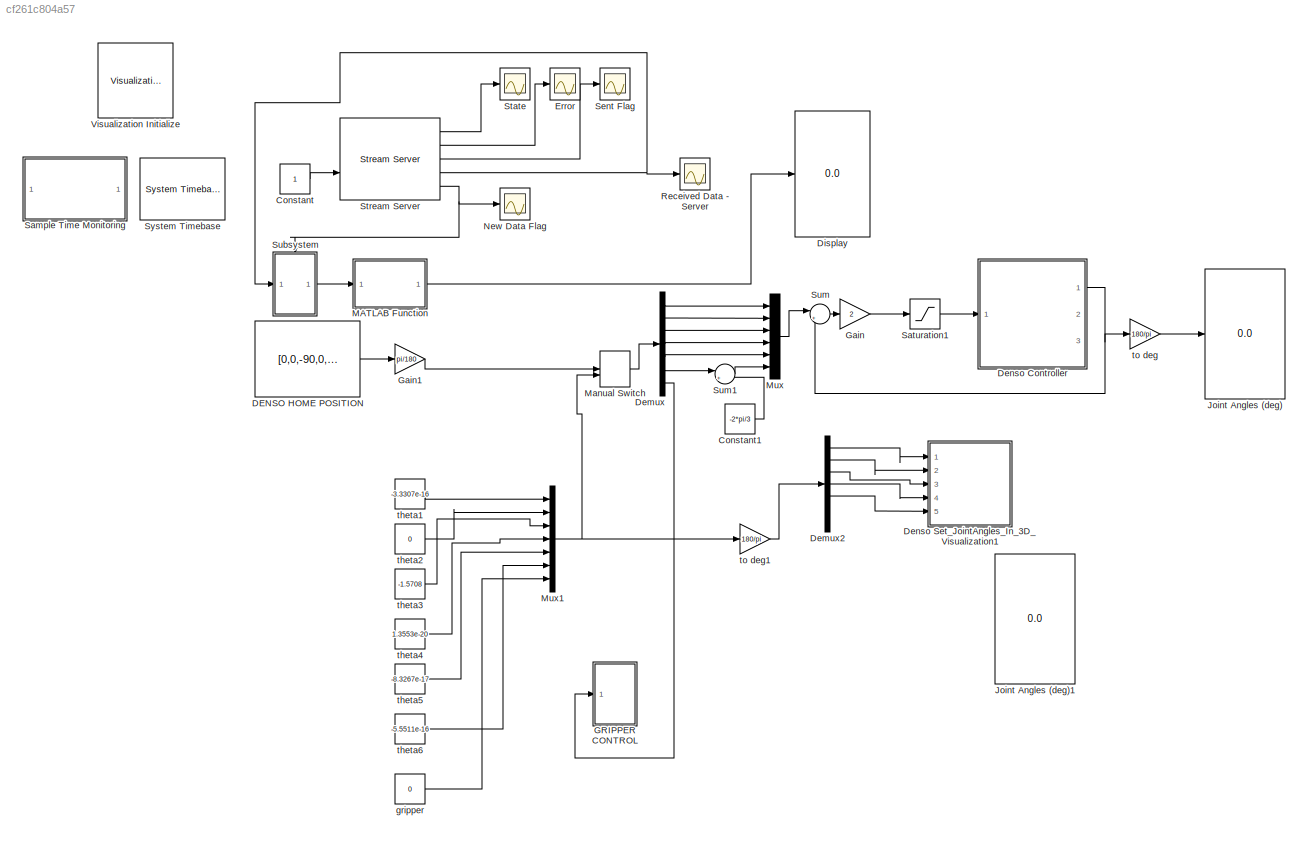
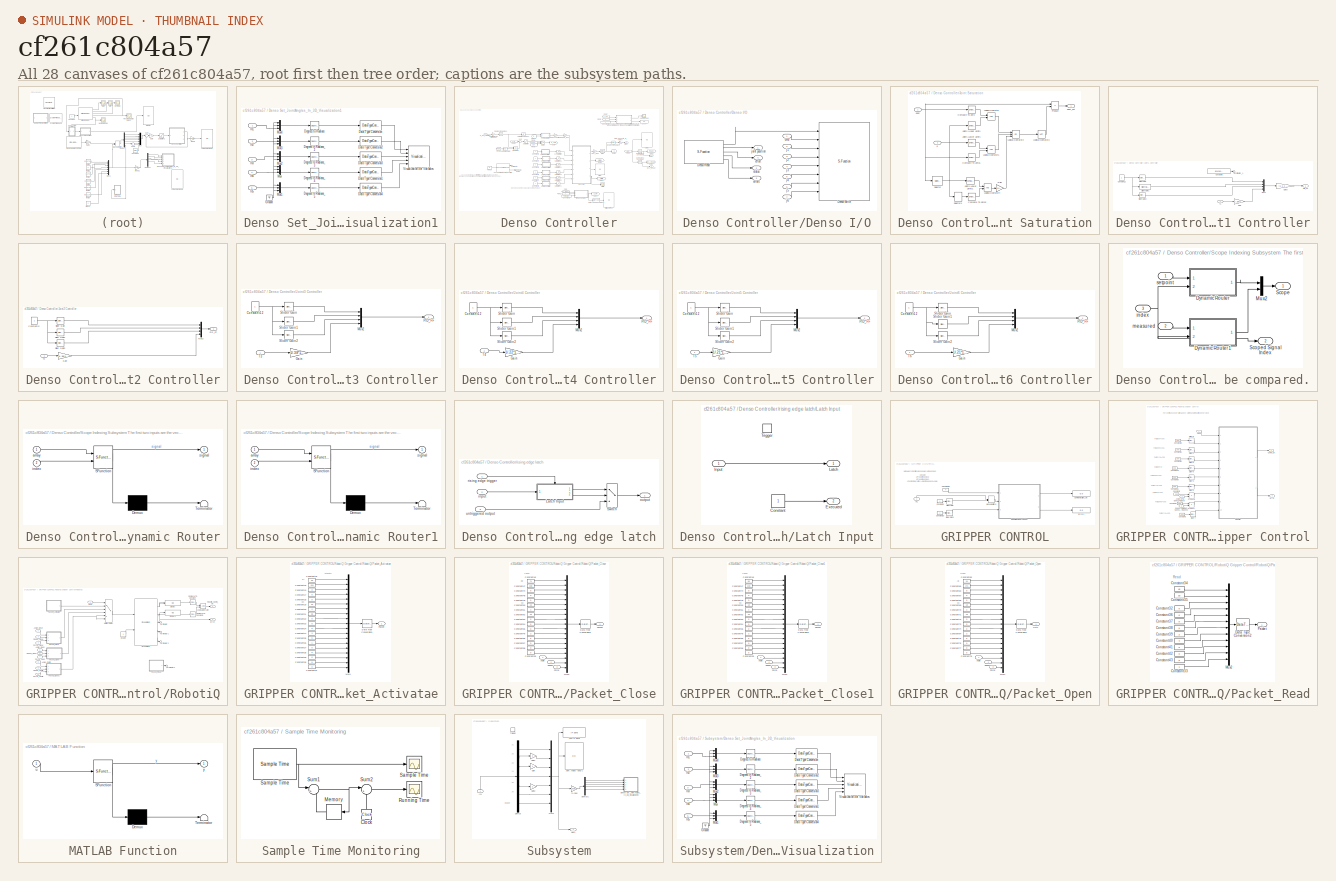
[diagram: thumbnail index - all 28 canvases of the model, root first then tree order]
MODEL slx_cf261c804a57
KIND model
CONFIG AbsTol = auto
CONFIG EnableMultiTasking = on
CONFIG FixedStep = 0.001
CONFIG MaxStep = auto
CONFIG MinStep = auto
CONFIG RelTol = 1e-3
CONFIG SampleTimeConstraint = Unconstrained
CONFIG Solver = ode1
CONFIG SolverName = ode1
CONFIG StartTime = 0.0
CONFIG StopTime = inf
BLOCK [Constant] Constant
BLOCK [Constant] Constant1
  Value = -2*pi/3
BLOCK [Constant] DENSO HOME POSITION
  OutDataTypeStr = double
  SampleTime = -1
  Value = [0,0,-90,0,0,-120, 0]
BLOCK [Demux] Demux
  DisplayOption = bar
  Outputs = 7
  Ports = [1, 7]
BLOCK [Demux] Demux2
  DisplayOption = bar
  Outputs = 7
  Ports = [1, 7]
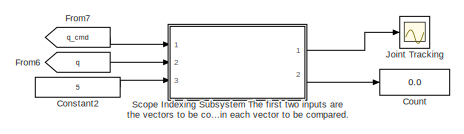
[diagram: Denso Controller - part 1/3, top right region]
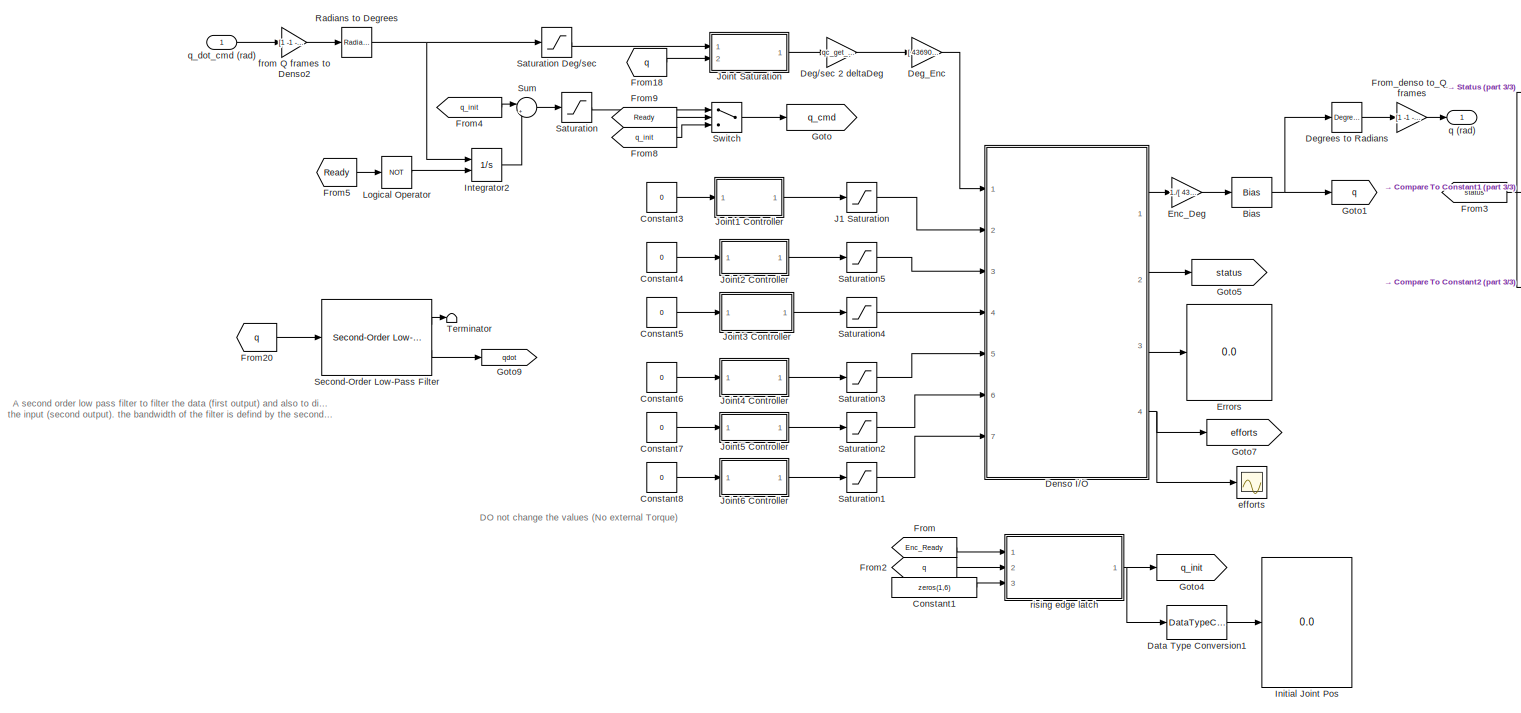
[diagram: Denso Controller - part 2/3, most of the canvas]
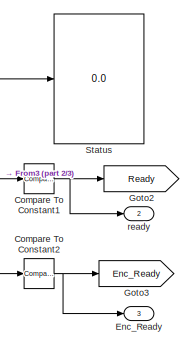
[diagram: Denso Controller - part 3/3, middle right region]
BLOCK [SubSystem] Denso Controller
  Commented = on
  Ports = [1, 3]
  RequestExecContextInheritance = off
BLOCK [Bias] Denso Controller/Bias
  Bias = [0 0 0 0 0 0]
  SaturateOnIntegerOverflow = off
BLOCK [Reference] Denso Controller/Compare To Constant1  REF=simulink/Logic and Bit
Operations/Compare
To Constant
  Ports = [1, 1]
  SourceBlock = simulink/Logic and Bit\nOperations/Compare\nTo Constant
  SourceProductBaseCode = SL
  SourceProductName = Simulink
  SourceType = Compare To Constant
BLOCK [Reference] Denso Controller/Compare To Constant2  REF=simulink/Logic and Bit
Operations/Compare
To Constant
  Ports = [1, 1]
  SourceBlock = simulink/Logic and Bit\nOperations/Compare\nTo Constant
  SourceProductBaseCode = SL
  SourceProductName = Simulink
  SourceType = Compare To Constant
BLOCK [Constant] Denso Controller/Constant1
  Value = zeros(1,6)
BLOCK [Constant] Denso Controller/Constant2
  Value = 5
BLOCK [Constant] Denso Controller/Constant3
  Value = 0
BLOCK [Constant] Denso Controller/Constant4
  Value = 0
BLOCK [Constant] Denso Controller/Constant5
  Value = 0
BLOCK [Constant] Denso Controller/Constant6
  Value = 0
BLOCK [Constant] Denso Controller/Constant7
  Value = 0
BLOCK [Constant] Denso Controller/Constant8
  Value = 0
BLOCK [Display] Denso Controller/Count
  Decimation = 100
  Ports = [1]
BLOCK [DataTypeConversion] Denso Controller/Data Type Conversion1
  OutDataTypeStr = int32
  RndMeth = Floor
  SaturateOnIntegerOverflow = off
BLOCK [Gain] Denso Controller/Deg//sec 2 deltaDeg
  Gain = qc_get_step_size
  OutDataTypeStr = Inherit: Inherit via internal rule
  ParamDataTypeStr = Inherit: Inherit via internal rule
  SaturateOnIntegerOverflow = off
BLOCK [Gain] Denso Controller/Deg_Enc
  Gain = [ 43690.66667 58254.22222 43690.66667 36408.88889 36408.88889 36408.88889]
  OutDataTypeStr = Inherit: Inherit via internal rule
  ParamDataTypeStr = Inherit: Inherit via internal rule
  SaturateOnIntegerOverflow = off
BLOCK [Reference] Denso Controller/Degrees to Radians  REF=simulink_extras/Transformations/Degrees to
Radians
  Ports = [1, 1]
  SourceBlock = simulink_extras/Transformations/Degrees to\nRadians
  SourceProductBaseCode = SL
  SourceProductName = Simulink
  SourceType = DegreesToRadians
BLOCK [SubSystem] Denso Controller/Denso I//O
  Ports = [7, 4]
  RequestExecContextInheritance = off
BLOCK [S-Function] Denso Controller/Denso I//O/Denso Read
  EnableBusSupport = off
  FunctionName = denso_read_block
  Parameters = uri
  Ports = [0, 5]
  SFcnIsStateOwnerBlock = off
  SFunctionDeploymentMode = off
BLOCK [S-Function] Denso Controller/Denso I//O/Denso Write
  EnableBusSupport = off
  FunctionName = denso_write_block
  Parameters = velocity_mode
  Ports = [8]
  SFcnIsStateOwnerBlock = off
  SFunctionDeploymentMode = off
BLOCK [Inport] Denso Controller/Denso I//O/cmd
  IconDisplay = Port number
BLOCK [Outport] Denso Controller/Denso I//O/effort
  IconDisplay = Port number
  Port = 4
BLOCK [Outport] Denso Controller/Denso I//O/errors
  IconDisplay = Port number
  Port = 3
BLOCK [Inport] Denso Controller/Denso I//O/j1
  IconDisplay = Port number
  Port = 2
BLOCK [Inport] Denso Controller/Denso I//O/j2
  IconDisplay = Port number
  Port = 3
BLOCK [Inport] Denso Controller/Denso I//O/j3
  IconDisplay = Port number
  Port = 4
BLOCK [Inport] Denso Controller/Denso I//O/j4
  IconDisplay = Port number
  Port = 5
BLOCK [Inport] Denso Controller/Denso I//O/j5
  IconDisplay = Port number
  Port = 6
BLOCK [Inport] Denso Controller/Denso I//O/j6
  IconDisplay = Port number
  Port = 7
BLOCK [Outport] Denso Controller/Denso I//O/joint position
  IconDisplay = Port number
BLOCK [Outport] Denso Controller/Denso I//O/status
  IconDisplay = Port number
  Port = 2
BLOCK [Gain] Denso Controller/Enc_Deg
  Gain = 1./[ 43690.66667 58254.22222 43690.66667 36408.88889 36408.88889 36408.88889]
  OutDataTypeStr = Inherit: Inherit via internal rule
  ParamDataTypeStr = Inherit: Inherit via internal rule
  SaturateOnIntegerOverflow = off
BLOCK [Outport] Denso Controller/Enc_Ready
  IconDisplay = Port number
  Port = 3
BLOCK [Display] Denso Controller/Errors
  Decimation = 100
  Ports = [1]
BLOCK [From] Denso Controller/From
  CloseFcn = tagdialog Close
  GotoTag = Enc_Ready
BLOCK [From] Denso Controller/From18
  CloseFcn = tagdialog Close
  GotoTag = q
BLOCK [From] Denso Controller/From2
  CloseFcn = tagdialog Close
  GotoTag = q
BLOCK [From] Denso Controller/From20
  CloseFcn = tagdialog Close
  GotoTag = q
BLOCK [From] Denso Controller/From3
  CloseFcn = tagdialog Close
  GotoTag = status
BLOCK [From] Denso Controller/From4
  CloseFcn = tagdialog Close
  GotoTag = q_init
BLOCK [From] Denso Controller/From5
  CloseFcn = tagdialog Close
  GotoTag = Ready
BLOCK [From] Denso Controller/From6
  CloseFcn = tagdialog Close
  GotoTag = q
BLOCK [From] Denso Controller/From7
  CloseFcn = tagdialog Close
  GotoTag = q_cmd
BLOCK [From] Denso Controller/From8
  CloseFcn = tagdialog Close
  GotoTag = q_init
BLOCK [From] Denso Controller/From9
  CloseFcn = tagdialog Close
  GotoTag = Ready
BLOCK [Gain] Denso Controller/From_denso to_Q_frames
  Gain = [1 -1 -1 1 -1 1]
  OutDataTypeStr = Inherit: Inherit via internal rule
  ParamDataTypeStr = Inherit: Inherit via internal rule
  SaturateOnIntegerOverflow = off
BLOCK [Goto] Denso Controller/Goto
  GotoTag = q_cmd
BLOCK [Goto] Denso Controller/Goto1
  GotoTag = q
BLOCK [Goto] Denso Controller/Goto2
  GotoTag = Ready
BLOCK [Goto] Denso Controller/Goto3
  GotoTag = Enc_Ready
BLOCK [Goto] Denso Controller/Goto4
  GotoTag = q_init
BLOCK [Goto] Denso Controller/Goto5
  GotoTag = status
BLOCK [Goto] Denso Controller/Goto7
  GotoTag = efforts
BLOCK [Goto] Denso Controller/Goto9
  GotoTag = qdot
BLOCK [Display] Denso Controller/Initial Joint Pos
  Decimation = 100
  Ports = [1]
BLOCK [Integrator] Denso Controller/Integrator2
  ExternalReset = level
  Ports = [2, 1]
BLOCK [Saturate] Denso Controller/J1 Saturation
  InputPortMap = u0
  LowerLimit = -3.7
  Ports = [1, 1]
  UpperLimit = 3.7
BLOCK [SubSystem] Denso Controller/Joint Saturation
  Ports = [2, 1]
  RequestExecContextInheritance = off
BLOCK [Reference] Denso Controller/Joint Saturation/Compare To Zero  REF=simulink/Logic and Bit
Operations/Compare
To Zero
  Ports = [1, 1]
  SourceBlock = simulink/Logic and Bit\nOperations/Compare\nTo Zero
  SourceProductBaseCode = SL
  SourceProductName = Simulink
  SourceType = Compare To Zero
BLOCK [Reference] Denso Controller/Joint Saturation/Compare To Zero1  REF=simulink/Logic and Bit
Operations/Compare
To Zero
  Ports = [1, 1]
  SourceBlock = simulink/Logic and Bit\nOperations/Compare\nTo Zero
  SourceProductBaseCode = SL
  SourceProductName = Simulink
  SourceType = Compare To Zero
BLOCK [Reference] Denso Controller/Joint Saturation/Compare To Zero2  REF=simulink/Logic and Bit
Operations/Compare
To Zero
  Ports = [1, 1]
  SourceBlock = simulink/Logic and Bit\nOperations/Compare\nTo Zero
  SourceProductBaseCode = SL
  SourceProductName = Simulink
  SourceType = Compare To Zero
BLOCK [Gain] Denso Controller/Joint Saturation/Gain
  Gain = [1 1 1 1 1 1]
  OutDataTypeStr = Inherit: Inherit via internal rule
  ParamDataTypeStr = Inherit: Inherit via internal rule
  SaturateOnIntegerOverflow = off
BLOCK [Reference] Denso Controller/Joint Saturation/Joints Lower Limits  REF=simulink/Logic and Bit
Operations/Compare
To Constant
  Ports = [1, 1]
  SourceBlock = simulink/Logic and Bit\nOperations/Compare\nTo Constant
  SourceProductBaseCode = SL
  SourceProductName = Simulink
  SourceType = Compare To Constant
BLOCK [Reference] Denso Controller/Joint Saturation/Joints Lower Limits1  REF=simulink/Logic and Bit
Operations/Compare
To Constant
  Ports = [1, 1]
  SourceBlock = simulink/Logic and Bit\nOperations/Compare\nTo Constant
  SourceProductBaseCode = SL
  SourceProductName = Simulink
  SourceType = Compare To Constant
BLOCK [Reference] Denso Controller/Joint Saturation/Joints Upper Limits  REF=simulink/Logic and Bit
Operations/Compare
To Constant
  Ports = [1, 1]
  SourceBlock = simulink/Logic and Bit\nOperations/Compare\nTo Constant
  SourceProductBaseCode = SL
  SourceProductName = Simulink
  SourceType = Compare To Constant
BLOCK [Logic] Denso Controller/Joint Saturation/Logical Operator
  AllPortsSameDT = off
  OutDataTypeStr = boolean
  Ports = [2, 1]
BLOCK [Logic] Denso Controller/Joint Saturation/Logical Operator1
  AllPortsSameDT = off
  OutDataTypeStr = boolean
  Ports = [2, 1]
BLOCK [Logic] Denso Controller/Joint Saturation/Logical Operator2
  AllPortsSameDT = off
  Inputs = 3
  Operator = OR
  OutDataTypeStr = boolean
  Ports = [3, 1]
BLOCK [Logic] Denso Controller/Joint Saturation/Logical Operator3
  AllPortsSameDT = off
  Operator = NOT
  OutDataTypeStr = boolean
  Ports = [1, 1]
BLOCK [Logic] Denso Controller/Joint Saturation/Logical Operator4
  AllPortsSameDT = off
  OutDataTypeStr = boolean
  Ports = [2, 1]
BLOCK [Product] Denso Controller/Joint Saturation/Product
  InputSameDT = off
  OutDataTypeStr = Inherit: Inherit via internal rule
  Ports = [2, 1]
  SaturateOnIntegerOverflow = off
BLOCK [Selector] Denso Controller/Joint Saturation/Selector
  IndexOptions = Index vector (dialog)
  Indices = 3
  InputPortWidth = 6
  OutputSizes = 1
  Ports = [1, 1]
BLOCK [Selector] Denso Controller/Joint Saturation/Selector1
  IndexOptions = Index vector (dialog)
  Indices = 3
  InputPortWidth = 6
  OutputSizes = 1
  Ports = [1, 1]
BLOCK [Inport] Denso Controller/Joint Saturation/q
  IconDisplay = Port number
  Port = 2
BLOCK [Inport] Denso Controller/Joint Saturation/qdot
  IconDisplay = Port number
BLOCK [Outport] Denso Controller/Joint Saturation/qdot_sat
  IconDisplay = Port number
BLOCK [Scope] Denso Controller/Joint Tracking
  Floating = off
  NumInputPorts = 1
  Ports = [1]
  ScopeSpecificationString = C++SS(StrPVP('Location','[97, 325, 1125, 1044]'),StrPVP('Open','off'),MxPVP('AxesTitles',53,'struct(''axes1'',''%<SignalLabel>'')'),StrPVP('TimeRange','2'),StrPVP('YMin','93'),StrPVP('YMax','100.5'),StrPVP('SaveName','ScopeData1'),StrPVP('DataFormat','StructureWithTime'),StrPVP('BlockParamSampleTime','0'),StrPVP('LimitDataPoints','on'),StrPVP('Decimation','1'),StrPVP('BlockParamSampleInput','off')...<+1ch>
BLOCK [SubSystem] Denso Controller/Joint1 Controller
  Ports = [1, 1]
  RequestExecContextInheritance = off
BLOCK [Constant] Denso Controller/Joint1 Controller/Constant12
BLOCK [Constant] Denso Controller/Joint1 Controller/Constant6
  Value = [1 0.1 28 35]
BLOCK [Gain] Denso Controller/Joint1 Controller/Gain
  Gain = 1/.38*120
  OutDataTypeStr = Inherit: Inherit via internal rule
  ParamDataTypeStr = Inherit: Inherit via internal rule
  SaturateOnIntegerOverflow = off
BLOCK [Gain] Denso Controller/Joint1 Controller/Gain3
  Gain = [1 1 1   1]
  OutDataTypeStr = Inherit: Inherit via internal rule
  ParamDataTypeStr = Inherit: Inherit via internal rule
  SaturateOnIntegerOverflow = off
BLOCK [Mux] Denso Controller/Joint1 Controller/Mux2
  DisplayOption = bar
  Ports = [4, 1]
BLOCK [Outport] Denso Controller/Joint1 Controller/PID_FF
  IconDisplay = Port number
BLOCK [Reference] Denso Controller/Joint1 Controller/Slider Gain  REF=simulink/Math
Operations/Slider
Gain
  Ports = [1, 1]
  SourceBlock = simulink/Math\nOperations/Slider\nGain
  SourceProductBaseCode = SL
  SourceProductName = Simulink
  SourceType = Slider Gain
BLOCK [Reference] Denso Controller/Joint1 Controller/Slider Gain1  REF=simulink/Math
Operations/Slider
Gain
  Ports = [1, 1]
  SourceBlock = simulink/Math\nOperations/Slider\nGain
  SourceProductBaseCode = SL
  SourceProductName = Simulink
  SourceType = Slider Gain
BLOCK [Reference] Denso Controller/Joint1 Controller/Slider Gain2  REF=simulink/Math
Operations/Slider
Gain
  Ports = [1, 1]
  SourceBlock = simulink/Math\nOperations/Slider\nGain
  SourceProductBaseCode = SL
  SourceProductName = Simulink
  SourceType = Slider Gain
BLOCK [Inport] Denso Controller/Joint1 Controller/T1
  IconDisplay = Port number
BLOCK [Terminator] Denso Controller/Joint1 Controller/Terminator_1
BLOCK [SubSystem] Denso Controller/Joint2 Controller
  Ports = [1, 1]
  RequestExecContextInheritance = off
BLOCK [Constant] Denso Controller/Joint2 Controller/Constant12
BLOCK [Gain] Denso Controller/Joint2 Controller/Gain
  Gain = 1/.38*160
  OutDataTypeStr = Inherit: Inherit via internal rule
  ParamDataTypeStr = Inherit: Inherit via internal rule
  SaturateOnIntegerOverflow = off
BLOCK [Mux] Denso Controller/Joint2 Controller/Mux2
  DisplayOption = bar
  Ports = [4, 1]
BLOCK [Outport] Denso Controller/Joint2 Controller/PID_FF
  IconDisplay = Port number
BLOCK [Reference] Denso Controller/Joint2 Controller/Slider Gain  REF=simulink/Math
Operations/Slider
Gain
  Ports = [1, 1]
  SourceBlock = simulink/Math\nOperations/Slider\nGain
  SourceProductBaseCode = SL
  SourceProductName = Simulink
  SourceType = Slider Gain
BLOCK [Reference] Denso Controller/Joint2 Controller/Slider Gain1  REF=simulink/Math
Operations/Slider
Gain
  Ports = [1, 1]
  SourceBlock = simulink/Math\nOperations/Slider\nGain
  SourceProductBaseCode = SL
  SourceProductName = Simulink
  SourceType = Slider Gain
BLOCK [Reference] Denso Controller/Joint2 Controller/Slider Gain2  REF=simulink/Math
Operations/Slider
Gain
  Ports = [1, 1]
  SourceBlock = simulink/Math\nOperations/Slider\nGain
  SourceProductBaseCode = SL
  SourceProductName = Simulink
  SourceType = Slider Gain
BLOCK [Inport] Denso Controller/Joint2 Controller/T2
  IconDisplay = Port number
BLOCK [SubSystem] Denso Controller/Joint3 Controller
  Ports = [1, 1]
  RequestExecContextInheritance = off
BLOCK [Constant] Denso Controller/Joint3 Controller/Constant12
BLOCK [Gain] Denso Controller/Joint3 Controller/Gain
  Gain = 1/.38*120
  OutDataTypeStr = Inherit: Inherit via internal rule
  ParamDataTypeStr = Inherit: Inherit via internal rule
  SaturateOnIntegerOverflow = off
BLOCK [Mux] Denso Controller/Joint3 Controller/Mux2
  DisplayOption = bar
  Ports = [4, 1]
BLOCK [Outport] Denso Controller/Joint3 Controller/PID_FF
  IconDisplay = Port number
BLOCK [Reference] Denso Controller/Joint3 Controller/Slider Gain  REF=simulink/Math
Operations/Slider
Gain
  Ports = [1, 1]
  SourceBlock = simulink/Math\nOperations/Slider\nGain
  SourceProductBaseCode = SL
  SourceProductName = Simulink
  SourceType = Slider Gain
BLOCK [Reference] Denso Controller/Joint3 Controller/Slider Gain1  REF=simulink/Math
Operations/Slider
Gain
  Ports = [1, 1]
  SourceBlock = simulink/Math\nOperations/Slider\nGain
  SourceProductBaseCode = SL
  SourceProductName = Simulink
  SourceType = Slider Gain
BLOCK [Reference] Denso Controller/Joint3 Controller/Slider Gain2  REF=simulink/Math
Operations/Slider
Gain
  Ports = [1, 1]
  SourceBlock = simulink/Math\nOperations/Slider\nGain
  SourceProductBaseCode = SL
  SourceProductName = Simulink
  SourceType = Slider Gain
BLOCK [Inport] Denso Controller/Joint3 Controller/T3
  IconDisplay = Port number
BLOCK [SubSystem] Denso Controller/Joint4 Controller
  Ports = [1, 1]
  RequestExecContextInheritance = off
BLOCK [Constant] Denso Controller/Joint4 Controller/Constant12
BLOCK [Gain] Denso Controller/Joint4 Controller/Gain
  Gain = 1/.22*100
  OutDataTypeStr = Inherit: Inherit via internal rule
  ParamDataTypeStr = Inherit: Inherit via internal rule
  SaturateOnIntegerOverflow = off
BLOCK [Mux] Denso Controller/Joint4 Controller/Mux2
  DisplayOption = bar
  Ports = [4, 1]
BLOCK [Outport] Denso Controller/Joint4 Controller/PID_FF
  IconDisplay = Port number
BLOCK [Reference] Denso Controller/Joint4 Controller/Slider Gain  REF=simulink/Math
Operations/Slider
Gain
  Ports = [1, 1]
  SourceBlock = simulink/Math\nOperations/Slider\nGain
  SourceProductBaseCode = SL
  SourceProductName = Simulink
  SourceType = Slider Gain
BLOCK [Reference] Denso Controller/Joint4 Controller/Slider Gain1  REF=simulink/Math
Operations/Slider
Gain
  Ports = [1, 1]
  SourceBlock = simulink/Math\nOperations/Slider\nGain
  SourceProductBaseCode = SL
  SourceProductName = Simulink
  SourceType = Slider Gain
BLOCK [Reference] Denso Controller/Joint4 Controller/Slider Gain2  REF=simulink/Math
Operations/Slider
Gain
  Ports = [1, 1]
  SourceBlock = simulink/Math\nOperations/Slider\nGain
  SourceProductBaseCode = SL
  SourceProductName = Simulink
  SourceType = Slider Gain
BLOCK [Inport] Denso Controller/Joint4 Controller/T4
  IconDisplay = Port number
BLOCK [SubSystem] Denso Controller/Joint5 Controller
  Ports = [1, 1]
  RequestExecContextInheritance = off
BLOCK [Constant] Denso Controller/Joint5 Controller/Constant12
BLOCK [Gain] Denso Controller/Joint5 Controller/Gain
  Gain = 1/.21*100
  OutDataTypeStr = Inherit: Inherit via internal rule
  ParamDataTypeStr = Inherit: Inherit via internal rule
  SaturateOnIntegerOverflow = off
BLOCK [Mux] Denso Controller/Joint5 Controller/Mux2
  DisplayOption = bar
  Ports = [4, 1]
BLOCK [Outport] Denso Controller/Joint5 Controller/PID_FF
  IconDisplay = Port number
BLOCK [Reference] Denso Controller/Joint5 Controller/Slider Gain  REF=simulink/Math
Operations/Slider
Gain
  Ports = [1, 1]
  SourceBlock = simulink/Math\nOperations/Slider\nGain
  SourceProductBaseCode = SL
  SourceProductName = Simulink
  SourceType = Slider Gain
BLOCK [Reference] Denso Controller/Joint5 Controller/Slider Gain1  REF=simulink/Math
Operations/Slider
Gain
  Ports = [1, 1]
  SourceBlock = simulink/Math\nOperations/Slider\nGain
  SourceProductBaseCode = SL
  SourceProductName = Simulink
  SourceType = Slider Gain
BLOCK [Reference] Denso Controller/Joint5 Controller/Slider Gain2  REF=simulink/Math
Operations/Slider
Gain
  Ports = [1, 1]
  SourceBlock = simulink/Math\nOperations/Slider\nGain
  SourceProductBaseCode = SL
  SourceProductName = Simulink
  SourceType = Slider Gain
BLOCK [Inport] Denso Controller/Joint5 Controller/T5
  IconDisplay = Port number
BLOCK [SubSystem] Denso Controller/Joint6 Controller
  Ports = [1, 1]
  RequestExecContextInheritance = off
BLOCK [Constant] Denso Controller/Joint6 Controller/Constant12
BLOCK [Gain] Denso Controller/Joint6 Controller/Gain
  Gain = 1/.21*100
  OutDataTypeStr = Inherit: Inherit via internal rule
  ParamDataTypeStr = Inherit: Inherit via internal rule
  SaturateOnIntegerOverflow = off
BLOCK [Mux] Denso Controller/Joint6 Controller/Mux2
  DisplayOption = bar
  Ports = [4, 1]
BLOCK [Outport] Denso Controller/Joint6 Controller/PID_FF
  IconDisplay = Port number
BLOCK [Reference] Denso Controller/Joint6 Controller/Slider Gain  REF=simulink/Math
Operations/Slider
Gain
  Ports = [1, 1]
  SourceBlock = simulink/Math\nOperations/Slider\nGain
  SourceProductBaseCode = SL
  SourceProductName = Simulink
  SourceType = Slider Gain
BLOCK [Reference] Denso Controller/Joint6 Controller/Slider Gain1  REF=simulink/Math
Operations/Slider
Gain
  Ports = [1, 1]
  SourceBlock = simulink/Math\nOperations/Slider\nGain
  SourceProductBaseCode = SL
  SourceProductName = Simulink
  SourceType = Slider Gain
BLOCK [Reference] Denso Controller/Joint6 Controller/Slider Gain2  REF=simulink/Math
Operations/Slider
Gain
  Ports = [1, 1]
  SourceBlock = simulink/Math\nOperations/Slider\nGain
  SourceProductBaseCode = SL
  SourceProductName = Simulink
  SourceType = Slider Gain
BLOCK [Inport] Denso Controller/Joint6 Controller/T6
  IconDisplay = Port number
BLOCK [Logic] Denso Controller/Logical Operator
  AllPortsSameDT = off
  Operator = NOT
  OutDataTypeStr = boolean
  Ports = [1, 1]
BLOCK [Reference] Denso Controller/Radians to Degrees  REF=simulink_extras/Transformations/Radians
to Degrees
  Ports = [1, 1]
  SourceBlock = simulink_extras/Transformations/Radians\nto Degrees
  SourceProductBaseCode = SL
  SourceProductName = Simulink
  SourceType = RadiansToDegrees
BLOCK [Saturate] Denso Controller/Saturation
  InputPortMap = u0
  LowerLimit = -[160 122 20 162 100 365]
  Ports = [1, 1]
  UpperLimit = [160 65 162 162 100 365]
BLOCK [Saturate] Denso Controller/Saturation Deg//sec
  InputPortMap = u0
  LowerLimit = -1e3*[1.1444    0.8583    1.1444    1.3733    1.3733    1.3733]
  Ports = [1, 1]
  UpperLimit = 1e3*[1.1444    0.8583    1.1444    1.3733    1.3733    1.3733]
BLOCK [Saturate] Denso Controller/Saturation1
  InputPortMap = u0
  LowerLimit = -3.7
  Ports = [1, 1]
  UpperLimit = 3.7
BLOCK [Saturate] Denso Controller/Saturation2
  InputPortMap = u0
  LowerLimit = -3.7
  Ports = [1, 1]
  UpperLimit = 3.7
BLOCK [Saturate] Denso Controller/Saturation3
  InputPortMap = u0
  LowerLimit = -3.7
  Ports = [1, 1]
  UpperLimit = 3.7
BLOCK [Saturate] Denso Controller/Saturation4
  InputPortMap = u0
  LowerLimit = -3.7
  Ports = [1, 1]
  UpperLimit = 3.7
BLOCK [Saturate] Denso Controller/Saturation5
  InputPortMap = u0
  LowerLimit = -3.7
  Ports = [1, 1]
  UpperLimit = 3.7
BLOCK [SubSystem] Denso Controller/Scope Indexing Subsystem The first two inputs are the vectors to be compared. The third input is an index to define the elements in each vector to be compared.
  Ports = [3, 2]
  RequestExecContextInheritance = off
BLOCK [SubSystem] Denso Controller/Scope Indexing Subsystem The first two inputs are the vectors to be compared. The third input is an index to define the elements in each vector to be compared./Dynamic Router
  ErrorFcn = Stateflow.Translate.translate
  PermitHierarchicalResolution = ExplicitOnly
  Ports = [2, 1]
  RequestExecContextInheritance = off
  SFBlockType = MATLAB Function
  TreatAsAtomicUnit = on
BLOCK [Demux] Denso Controller/Scope Indexing Subsystem The first two inputs are the vectors to be compared. The third input is an index to define the elements in each vector to be compared./Dynamic Router/ Demux 
  Outputs = 1
  Ports = [1, 1]
BLOCK [S-Function] Denso Controller/Scope Indexing Subsystem The first two inputs are the vectors to be compared. The third input is an index to define the elements in each vector to be compared./Dynamic Router/ SFunction 
  EnableBusSupport = off
  FunctionName = sf_sfun
  PortCounts = [2 2]
  Ports = [2, 2]
  SFcnIsStateOwnerBlock = off
  SFunctionDeploymentMode = off
  Tag = Stateflow S-Function projetoRobotica 11
BLOCK [Terminator] Denso Controller/Scope Indexing Subsystem The first two inputs are the vectors to be compared. The third input is an index to define the elements in each vector to be compared./Dynamic Router/ Terminator 
BLOCK [Inport] Denso Controller/Scope Indexing Subsystem The first two inputs are the vectors to be compared. The third input is an index to define the elements in each vector to be compared./Dynamic Router/array
  IconDisplay = Port number
BLOCK [Inport] Denso Controller/Scope Indexing Subsystem The first two inputs are the vectors to be compared. The third input is an index to define the elements in each vector to be compared./Dynamic Router/index
  IconDisplay = Port number
  Port = 2
BLOCK [Outport] Denso Controller/Scope Indexing Subsystem The first two inputs are the vectors to be compared. The third input is an index to define the elements in each vector to be compared./Dynamic Router/signal
  IconDisplay = Port number
BLOCK [SubSystem] Denso Controller/Scope Indexing Subsystem The first two inputs are the vectors to be compared. The third input is an index to define the elements in each vector to be compared./Dynamic Router1
  ErrorFcn = Stateflow.Translate.translate
  PermitHierarchicalResolution = ExplicitOnly
  Ports = [2, 1]
  RequestExecContextInheritance = off
  SFBlockType = MATLAB Function
  TreatAsAtomicUnit = on
BLOCK [Demux] Denso Controller/Scope Indexing Subsystem The first two inputs are the vectors to be compared. The third input is an index to define the elements in each vector to be compared./Dynamic Router1/ Demux 
  Outputs = 1
  Ports = [1, 1]
BLOCK [S-Function] Denso Controller/Scope Indexing Subsystem The first two inputs are the vectors to be compared. The third input is an index to define the elements in each vector to be compared./Dynamic Router1/ SFunction 
  EnableBusSupport = off
  FunctionName = sf_sfun
  PortCounts = [2 2]
  Ports = [2, 2]
  SFcnIsStateOwnerBlock = off
  SFunctionDeploymentMode = off
  Tag = Stateflow S-Function projetoRobotica 3
BLOCK [Terminator] Denso Controller/Scope Indexing Subsystem The first two inputs are the vectors to be compared. The third input is an index to define the elements in each vector to be compared./Dynamic Router1/ Terminator 
BLOCK [Inport] Denso Controller/Scope Indexing Subsystem The first two inputs are the vectors to be compared. The third input is an index to define the elements in each vector to be compared./Dynamic Router1/array
  IconDisplay = Port number
BLOCK [Inport] Denso Controller/Scope Indexing Subsystem The first two inputs are the vectors to be compared. The third input is an index to define the elements in each vector to be compared./Dynamic Router1/index
  IconDisplay = Port number
  Port = 2
BLOCK [Outport] Denso Controller/Scope Indexing Subsystem The first two inputs are the vectors to be compared. The third input is an index to define the elements in each vector to be compared./Dynamic Router1/signal
  IconDisplay = Port number
BLOCK [Mux] Denso Controller/Scope Indexing Subsystem The first two inputs are the vectors to be compared. The third input is an index to define the elements in each vector to be compared./Mux2
  DisplayOption = bar
  Inputs = 2
  Ports = [2, 1]
BLOCK [Outport] Denso Controller/Scope Indexing Subsystem The first two inputs are the vectors to be compared. The third input is an index to define the elements in each vector to be compared./Scope
  IconDisplay = Port number
BLOCK [Outport] Denso Controller/Scope Indexing Subsystem The first two inputs are the vectors to be compared. The third input is an index to define the elements in each vector to be compared./Scoped Signal Index
  IconDisplay = Port number
  Port = 2
BLOCK [Inport] Denso Controller/Scope Indexing Subsystem The first two inputs are the vectors to be compared. The third input is an index to define the elements in each vector to be compared./index
  IconDisplay = Port number
  Port = 3
BLOCK [Inport] Denso Controller/Scope Indexing Subsystem The first two inputs are the vectors to be compared. The third input is an index to define the elements in each vector to be compared./measured
  IconDisplay = Port number
  Port = 2
BLOCK [Inport] Denso Controller/Scope Indexing Subsystem The first two inputs are the vectors to be compared. The third input is an index to define the elements in each vector to be compared./setpoint
  IconDisplay = Port number
BLOCK [Reference] Denso Controller/Second-Order Low-Pass Filter  REF=quarc_library/Continuous/Second-Order
Low-Pass Filter
  Ports = [1, 2]
  SourceBlock = quarc_library/Continuous/Second-Order\nLow-Pass Filter
  SourceType = Second-Order Low-Pass Filter
BLOCK [Display] Denso Controller/Status
  Decimation = 100
  Ports = [1]
BLOCK [Sum] Denso Controller/Sum
  IconShape = round
  InputSameDT = off
  Inputs = |++
  OutDataTypeStr = Inherit: Inherit via internal rule
  Ports = [2, 1]
  SaturateOnIntegerOverflow = off
BLOCK [Switch] Denso Controller/Switch
  InputSameDT = off
  SaturateOnIntegerOverflow = off
  Threshold = 1
BLOCK [Terminator] Denso Controller/Terminator
BLOCK [Scope] Denso Controller/efforts
  Floating = off
  NumInputPorts = 1
  Ports = [1]
  ScopeSpecificationString = C++SS(StrPVP('Location','[662, 82, 1400, 937]'),StrPVP('Open','off'),MxPVP('AxesTitles',53,'struct(''axes1'',''%<SignalLabel>'')'),MxPVP('ScopeGraphics',56,'struct(''FigureColor'',''[0.501960784313725 0.501960784313725 0.501960784313725]'',''AxesColor'',''[0 0 0]'',''AxesTickColor'',''[1 1 1]'',''LineColors'',''[1 1 0;1 0 1;0 1 1;1 0 0;0 1 0;0 0 1]'',''LineStyles'',''-|-|-|-|-|-'',''LineWidths'','...<+353ch>
BLOCK [Gain] Denso Controller/from Q frames to Denso2
  Gain = [1 -1 -1 1 -1 1]
  OutDataTypeStr = Inherit: Inherit via internal rule
  ParamDataTypeStr = Inherit: Inherit via internal rule
  SaturateOnIntegerOverflow = off
BLOCK [Outport] Denso Controller/q (rad)
  IconDisplay = Port number
BLOCK [Inport] Denso Controller/q_dot_cmd (rad)
  IconDisplay = Port number
BLOCK [Outport] Denso Controller/ready
  IconDisplay = Port number
  Port = 2
BLOCK [SubSystem] Denso Controller/rising edge latch
  Ports = [3, 1]
  RequestExecContextInheritance = off
BLOCK [SubSystem] Denso Controller/rising edge latch/Latch Input
  Ports = [1, 2, 0, 1]
  RequestExecContextInheritance = off
  TreatAsAtomicUnit = on
BLOCK [Constant] Denso Controller/rising edge latch/Latch Input/Constant
BLOCK [Outport] Denso Controller/rising edge latch/Latch Input/Executed
  IconDisplay = Port number
  Port = 2
BLOCK [Inport] Denso Controller/rising edge latch/Latch Input/Input
  IconDisplay = Port number
BLOCK [Outport] Denso Controller/rising edge latch/Latch Input/Latch
  IconDisplay = Port number
BLOCK [TriggerPort] Denso Controller/rising edge latch/Latch Input/Trigger
  Ports = []
  StatesWhenEnabling = held
  VariantControl = (inherit)
BLOCK [Switch] Denso Controller/rising edge latch/Switch
  InputSameDT = off
  SaturateOnIntegerOverflow = off
  Threshold = 0.5
BLOCK [Inport] Denso Controller/rising edge latch/input
  IconDisplay = Port number
  Port = 2
BLOCK [Outport] Denso Controller/rising edge latch/output
  IconDisplay = Port number
BLOCK [Inport] Denso Controller/rising edge latch/rising edge trigger
  IconDisplay = Port number
BLOCK [Inport] Denso Controller/rising edge latch/untriggered output
  IconDisplay = Port number
  Port = 3
BLOCK [SubSystem] Denso Set_JointAngles_In_3D_Visualization1
  Ports = [5]
  RequestExecContextInheritance = off
BLOCK [DataTypeConversion] Denso Set_JointAngles_In_3D_Visualization1/Data Type Conversion
  OutDataTypeStr = double
  RndMeth = Floor
  SaturateOnIntegerOverflow = off
BLOCK [DataTypeConversion] Denso Set_JointAngles_In_3D_Visualization1/Data Type Conversion1
  OutDataTypeStr = double
  RndMeth = Floor
  SaturateOnIntegerOverflow = off
BLOCK [DataTypeConversion] Denso Set_JointAngles_In_3D_Visualization1/Data Type Conversion2
  OutDataTypeStr = double
  RndMeth = Floor
  SaturateOnIntegerOverflow = off
BLOCK [DataTypeConversion] Denso Set_JointAngles_In_3D_Visualization1/Data Type Conversion3
  OutDataTypeStr = double
  RndMeth = Floor
  SaturateOnIntegerOverflow = off
BLOCK [DataTypeConversion] Denso Set_JointAngles_In_3D_Visualization1/Data Type Conversion4
  OutDataTypeStr = double
  RndMeth = Floor
  SaturateOnIntegerOverflow = off
BLOCK [Reference] Denso Set_JointAngles_In_3D_Visualization1/Degrees to Radians  REF=simulink_extras/Transformations/Degrees to
Radians
  Ports = [1, 1]
  SourceBlock = simulink_extras/Transformations/Degrees to\nRadians
  SourceProductBaseCode = SL
  SourceProductName = Simulink
  SourceType = DegreesToRadians
BLOCK [Reference] Denso Set_JointAngles_In_3D_Visualization1/Degrees to Radians_2  REF=simulink_extras/Transformations/Degrees to
Radians
  Ports = [1, 1]
  SourceBlock = simulink_extras/Transformations/Degrees to\nRadians
  SourceProductBaseCode = SL
  SourceProductName = Simulink
  SourceType = DegreesToRadians
BLOCK [Reference] Denso Set_JointAngles_In_3D_Visualization1/Degrees to Radians_3  REF=simulink_extras/Transformations/Degrees to
Radians
  Ports = [1, 1]
  SourceBlock = simulink_extras/Transformations/Degrees to\nRadians
  SourceProductBaseCode = SL
  SourceProductName = Simulink
  SourceType = DegreesToRadians
BLOCK [Reference] Denso Set_JointAngles_In_3D_Visualization1/Degrees to Radians_4  REF=simulink_extras/Transformations/Degrees to
Radians
  Ports = [1, 1]
  SourceBlock = simulink_extras/Transformations/Degrees to\nRadians
  SourceProductBaseCode = SL
  SourceProductName = Simulink
  SourceType = DegreesToRadians
BLOCK [Reference] Denso Set_JointAngles_In_3D_Visualization1/Degrees to Radians_5  REF=simulink_extras/Transformations/Degrees to
Radians
  Ports = [1, 1]
  SourceBlock = simulink_extras/Transformations/Degrees to\nRadians
  SourceProductBaseCode = SL
  SourceProductName = Simulink
  SourceType = DegreesToRadians
BLOCK [Ground] Denso Set_JointAngles_In_3D_Visualization1/Ground
BLOCK [Inport] Denso Set_JointAngles_In_3D_Visualization1/In1
  IconDisplay = Port number
BLOCK [Inport] Denso Set_JointAngles_In_3D_Visualization1/In2
  IconDisplay = Port number
  Port = 2
BLOCK [Inport] Denso Set_JointAngles_In_3D_Visualization1/In3
  IconDisplay = Port number
  Port = 3
BLOCK [Inport] Denso Set_JointAngles_In_3D_Visualization1/In4
  IconDisplay = Port number
  Port = 4
BLOCK [Inport] Denso Set_JointAngles_In_3D_Visualization1/In5
  IconDisplay = Port number
  Port = 5
BLOCK [Mux] Denso Set_JointAngles_In_3D_Visualization1/Mux
  DisplayOption = bar
  Inputs = 3
  Ports = [3, 1]
BLOCK [Mux] Denso Set_JointAngles_In_3D_Visualization1/Mux1
  DisplayOption = bar
  Inputs = 3
  Ports = [3, 1]
BLOCK [Mux] Denso Set_JointAngles_In_3D_Visualization1/Mux2
  DisplayOption = bar
  Inputs = 3
  Ports = [3, 1]
BLOCK [Mux] Denso Set_JointAngles_In_3D_Visualization1/Mux3
  DisplayOption = bar
  Inputs = 3
  Ports = [3, 1]
BLOCK [Mux] Denso Set_JointAngles_In_3D_Visualization1/Mux4
  DisplayOption = bar
  Inputs = 3
  Ports = [3, 1]
BLOCK [Reference] Denso Set_JointAngles_In_3D_Visualization1/Visualization Set Variables  REF=quarc_library/User Interface/Visualization/Visualization Set Variables
  AttributesFormatString = (%<object_name>)
  Ports = [5]
  SourceBlock = quarc_library/User Interface/Visualization/Visualization Set Variables
  SourceType = Visualization Set Variables
BLOCK [Display] Display
  Decimation = 1
  Ports = [1]
BLOCK [Scope] Error
  Floating = off
  NumInputPorts = 1
  Ports = [1]
  ScopeSpecificationString = C++SS(StrPVP('Location','[147, 86, 471, 325]'),StrPVP('Open','off'),MxPVP('AxesTitles',53,'struct(''axes1'',''%<SignalLabel>'')'),MxPVP('ScopeGraphics',56,'struct(''FigureColor'',''[0.5 0.5 0.5]'',''AxesColor'',''[0 0 0]'',''AxesTickColor'',''[1 1 1]'',''LineColors'',''[1 1 0;1 0 1;0 1 1;1 0 0;0 1 0;0 0 1]'',''LineStyles'',''-|-|-|-|-|-'',''LineWidths'',''[0.5 0.5 0.5 0.5 0.5 0.5]'',''MarkerStyles...<+242ch>
BLOCK [SubSystem] GRIPPER CONTROL
  Ports = [1]
  RequestExecContextInheritance = off
BLOCK [Display] GRIPPER CONTROL/Communication_OK
  Decimation = 1
  Ports = [1]
BLOCK [Constant] GRIPPER CONTROL/Constant10
BLOCK [Constant] GRIPPER CONTROL/Constant82
  Value = 4
BLOCK [Constant] GRIPPER CONTROL/Constant9
BLOCK [Display] GRIPPER CONTROL/Error1
  Decimation = 1
  Ports = [1]
BLOCK [Inport] GRIPPER CONTROL/In1
  IconDisplay = Port number
BLOCK [ManualSwitch] GRIPPER CONTROL/Manual Switch3
BLOCK [SubSystem] GRIPPER CONTROL/RobotiQ Gripper Control
  Ports = [3, 2]
  RequestExecContextInheritance = off
BLOCK [Inport] GRIPPER CONTROL/RobotiQ Gripper Control/Angle (0: Full Open, 1: Full Close
  IconDisplay = Port number
  Port = 2
BLOCK [Outport] GRIPPER CONTROL/RobotiQ Gripper Control/Comm_OK
  IconDisplay = Port number
BLOCK [Constant] GRIPPER CONTROL/RobotiQ Gripper Control/Constant1
  Value = 255
BLOCK [Constant] GRIPPER CONTROL/RobotiQ Gripper Control/Constant2
  Value = 255
BLOCK [Constant] GRIPPER CONTROL/RobotiQ Gripper Control/Constant3
  Value = 255
BLOCK [Constant] GRIPPER CONTROL/RobotiQ Gripper Control/Constant60
  Value = 255
BLOCK [Constant] GRIPPER CONTROL/RobotiQ Gripper Control/Constant61
  Value = 255
BLOCK [Constant] GRIPPER CONTROL/RobotiQ Gripper Control/Constant62
  Value = 255
BLOCK [Constant] GRIPPER CONTROL/RobotiQ Gripper Control/Constant79
  Value = 255
BLOCK [Constant] GRIPPER CONTROL/RobotiQ Gripper Control/Constant80
  Value = 255
BLOCK [Constant] GRIPPER CONTROL/RobotiQ Gripper Control/Constant81
  Value = 255
BLOCK [Outport] GRIPPER CONTROL/RobotiQ Gripper Control/Error
  IconDisplay = Port number
  Port = 2
BLOCK [Product] GRIPPER CONTROL/RobotiQ Gripper Control/Product
  InputSameDT = off
  OutDataTypeStr = Inherit: Inherit via internal rule
  Ports = [2, 1]
  SaturateOnIntegerOverflow = off
BLOCK [Product] GRIPPER CONTROL/RobotiQ Gripper Control/Product1
  InputSameDT = off
  OutDataTypeStr = Inherit: Inherit via internal rule
  Ports = [2, 1]
  SaturateOnIntegerOverflow = off
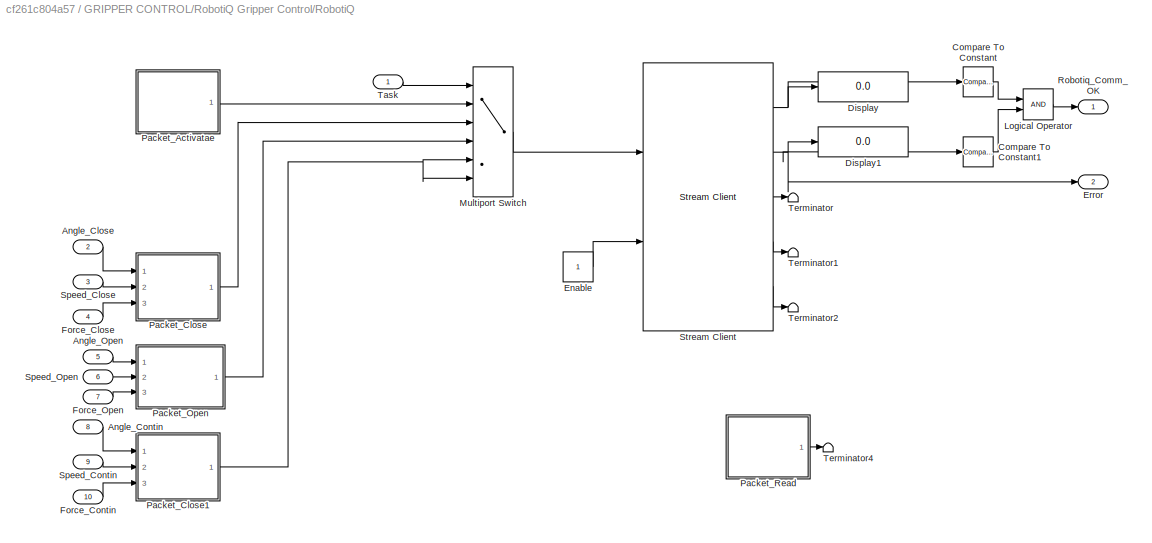
BLOCK [SubSystem] GRIPPER CONTROL/RobotiQ Gripper Control/RobotiQ
  Ports = [10, 2]
  RequestExecContextInheritance = off
BLOCK [Inport] GRIPPER CONTROL/RobotiQ Gripper Control/RobotiQ/Angle_Close
  IconDisplay = Port number
  Port = 2
BLOCK [Inport] GRIPPER CONTROL/RobotiQ Gripper Control/RobotiQ/Angle_Contin
  IconDisplay = Port number
  Port = 8
BLOCK [Inport] GRIPPER CONTROL/RobotiQ Gripper Control/RobotiQ/Angle_Open
  IconDisplay = Port number
  Port = 5
BLOCK [Reference] GRIPPER CONTROL/RobotiQ Gripper Control/RobotiQ/Compare To Constant  REF=simulink/Logic and Bit
Operations/Compare
To Constant
  Ports = [1, 1]
  SourceBlock = simulink/Logic and Bit\nOperations/Compare\nTo Constant
  SourceProductBaseCode = SL
  SourceProductName = Simulink
  SourceType = Compare To Constant
BLOCK [Reference] GRIPPER CONTROL/RobotiQ Gripper Control/RobotiQ/Compare To Constant1  REF=simulink/Logic and Bit
Operations/Compare
To Constant
  Ports = [1, 1]
  SourceBlock = simulink/Logic and Bit\nOperations/Compare\nTo Constant
  SourceProductBaseCode = SL
  SourceProductName = Simulink
  SourceType = Compare To Constant
BLOCK [Display] GRIPPER CONTROL/RobotiQ Gripper Control/RobotiQ/Display
  Decimation = 1
  Ports = [1]
BLOCK [Display] GRIPPER CONTROL/RobotiQ Gripper Control/RobotiQ/Display1
  Decimation = 1
  Ports = [1]
BLOCK [Constant] GRIPPER CONTROL/RobotiQ Gripper Control/RobotiQ/Enable
BLOCK [Outport] GRIPPER CONTROL/RobotiQ Gripper Control/RobotiQ/Error
  IconDisplay = Port number
  Port = 2
BLOCK [Inport] GRIPPER CONTROL/RobotiQ Gripper Control/RobotiQ/Force_Close
  IconDisplay = Port number
  Port = 4
BLOCK [Inport] GRIPPER CONTROL/RobotiQ Gripper Control/RobotiQ/Force_Contin
  IconDisplay = Port number
  Port = 10
BLOCK [Inport] GRIPPER CONTROL/RobotiQ Gripper Control/RobotiQ/Force_Open
  IconDisplay = Port number
  Port = 7
BLOCK [Logic] GRIPPER CONTROL/RobotiQ Gripper Control/RobotiQ/Logical Operator
  AllPortsSameDT = off
  OutDataTypeStr = boolean
  Ports = [2, 1]
BLOCK [MultiPortSwitch] GRIPPER CONTROL/RobotiQ Gripper Control/RobotiQ/Multiport Switch
  AllowDiffInputSizes = on
  InputSameDT = off
  Inputs = 5
  Ports = [6, 1]
  SaturateOnIntegerOverflow = off
BLOCK [SubSystem] GRIPPER CONTROL/RobotiQ Gripper Control/RobotiQ/Packet_Activatae
  Ports = [0, 1]
  RequestExecContextInheritance = off
BLOCK [Constant] GRIPPER CONTROL/RobotiQ Gripper Control/RobotiQ/Packet_Activatae/Constant13
  Value = 0
BLOCK [Constant] GRIPPER CONTROL/RobotiQ Gripper Control/RobotiQ/Packet_Activatae/Constant14
  Value = 3
BLOCK [Constant] GRIPPER CONTROL/RobotiQ Gripper Control/RobotiQ/Packet_Activatae/Constant15
  Value = 33
BLOCK [Constant] GRIPPER CONTROL/RobotiQ Gripper Control/RobotiQ/Packet_Activatae/Constant16
  Value = 154
BLOCK [Constant] GRIPPER CONTROL/RobotiQ Gripper Control/RobotiQ/Packet_Activatae/Constant17
  Value = 0
BLOCK [Constant] GRIPPER CONTROL/RobotiQ Gripper Control/RobotiQ/Packet_Activatae/Constant18
  Value = 0
BLOCK [Constant] GRIPPER CONTROL/RobotiQ Gripper Control/RobotiQ/Packet_Activatae/Constant19
  Value = 13
BLOCK [Constant] GRIPPER CONTROL/RobotiQ Gripper Control/RobotiQ/Packet_Activatae/Constant20
  Value = 2
BLOCK [Constant] GRIPPER CONTROL/RobotiQ Gripper Control/RobotiQ/Packet_Activatae/Constant21
  Value = 16
BLOCK [Constant] GRIPPER CONTROL/RobotiQ Gripper Control/RobotiQ/Packet_Activatae/Constant22
  Value = 0
BLOCK [Constant] GRIPPER CONTROL/RobotiQ Gripper Control/RobotiQ/Packet_Activatae/Constant23
  Value = 0
BLOCK [Constant] GRIPPER CONTROL/RobotiQ Gripper Control/RobotiQ/Packet_Activatae/Constant24
  Value = 0
BLOCK [Constant] GRIPPER CONTROL/RobotiQ Gripper Control/RobotiQ/Packet_Activatae/Constant25
  Value = 6
BLOCK [Constant] GRIPPER CONTROL/RobotiQ Gripper Control/RobotiQ/Packet_Activatae/Constant26
BLOCK [Constant] GRIPPER CONTROL/RobotiQ Gripper Control/RobotiQ/Packet_Activatae/Constant27
  Value = 0
BLOCK [Constant] GRIPPER CONTROL/RobotiQ Gripper Control/RobotiQ/Packet_Activatae/Constant28
  Value = 0
BLOCK [Constant] GRIPPER CONTROL/RobotiQ Gripper Control/RobotiQ/Packet_Activatae/Constant29
  Value = 0
BLOCK [Constant] GRIPPER CONTROL/RobotiQ Gripper Control/RobotiQ/Packet_Activatae/Constant30
  Value = 0
BLOCK [Constant] GRIPPER CONTROL/RobotiQ Gripper Control/RobotiQ/Packet_Activatae/Constant31
  Value = 0
BLOCK [DataTypeConversion] GRIPPER CONTROL/RobotiQ Gripper Control/RobotiQ/Packet_Activatae/Data Type Conversion1
  OutDataTypeStr = uint8
  RndMeth = Floor
  SaturateOnIntegerOverflow = off
BLOCK [Mux] GRIPPER CONTROL/RobotiQ Gripper Control/RobotiQ/Packet_Activatae/Mux1
  DisplayOption = bar
  Inputs = 19
  Ports = [19, 1]
BLOCK [Outport] GRIPPER CONTROL/RobotiQ Gripper Control/RobotiQ/Packet_Activatae/Packet
  IconDisplay = Port number
BLOCK [SubSystem] GRIPPER CONTROL/RobotiQ Gripper Control/RobotiQ/Packet_Close
  Ports = [3, 1]
  RequestExecContextInheritance = off
BLOCK [Inport] GRIPPER CONTROL/RobotiQ Gripper Control/RobotiQ/Packet_Close/Angle
  IconDisplay = Port number
BLOCK [Constant] GRIPPER CONTROL/RobotiQ Gripper Control/RobotiQ/Packet_Close/Constant44
  Value = 0
BLOCK [Constant] GRIPPER CONTROL/RobotiQ Gripper Control/RobotiQ/Packet_Close/Constant45
  Value = 3
BLOCK [Constant] GRIPPER CONTROL/RobotiQ Gripper Control/RobotiQ/Packet_Close/Constant46
  Value = 71
BLOCK [Constant] GRIPPER CONTROL/RobotiQ Gripper Control/RobotiQ/Packet_Close/Constant47
  Value = 238
BLOCK [Constant] GRIPPER CONTROL/RobotiQ Gripper Control/RobotiQ/Packet_Close/Constant48
  Value = 0
BLOCK [Constant] GRIPPER CONTROL/RobotiQ Gripper Control/RobotiQ/Packet_Close/Constant49
  Value = 0
BLOCK [Constant] GRIPPER CONTROL/RobotiQ Gripper Control/RobotiQ/Packet_Close/Constant50
  Value = 13
BLOCK [Constant] GRIPPER CONTROL/RobotiQ Gripper Control/RobotiQ/Packet_Close/Constant51
  Value = 2
BLOCK [Constant] GRIPPER CONTROL/RobotiQ Gripper Control/RobotiQ/Packet_Close/Constant52
  Value = 16
BLOCK [Constant] GRIPPER CONTROL/RobotiQ Gripper Control/RobotiQ/Packet_Close/Constant53
  Value = 0
BLOCK [Constant] GRIPPER CONTROL/RobotiQ Gripper Control/RobotiQ/Packet_Close/Constant54
  Value = 0
BLOCK [Constant] GRIPPER CONTROL/RobotiQ Gripper Control/RobotiQ/Packet_Close/Constant55
  Value = 0
BLOCK [Constant] GRIPPER CONTROL/RobotiQ Gripper Control/RobotiQ/Packet_Close/Constant56
  Value = 6
BLOCK [Constant] GRIPPER CONTROL/RobotiQ Gripper Control/RobotiQ/Packet_Close/Constant57
  Value = 9
BLOCK [Constant] GRIPPER CONTROL/RobotiQ Gripper Control/RobotiQ/Packet_Close/Constant58
  Value = 0
BLOCK [Constant] GRIPPER CONTROL/RobotiQ Gripper Control/RobotiQ/Packet_Close/Constant59
  Value = 0
BLOCK [DataTypeConversion] GRIPPER CONTROL/RobotiQ Gripper Control/RobotiQ/Packet_Close/Data Type Conversion3
  OutDataTypeStr = uint8
  RndMeth = Floor
  SaturateOnIntegerOverflow = off
BLOCK [Inport] GRIPPER CONTROL/RobotiQ Gripper Control/RobotiQ/Packet_Close/Force
  IconDisplay = Port number
  Port = 3
BLOCK [Mux] GRIPPER CONTROL/RobotiQ Gripper Control/RobotiQ/Packet_Close/Mux3
  DisplayOption = bar
  Inputs = 19
  Ports = [19, 1]
BLOCK [Outport] GRIPPER CONTROL/RobotiQ Gripper Control/RobotiQ/Packet_Close/Packet
  IconDisplay = Port number
BLOCK [Inport] GRIPPER CONTROL/RobotiQ Gripper Control/RobotiQ/Packet_Close/Speed
  IconDisplay = Port number
  Port = 2
BLOCK [SubSystem] GRIPPER CONTROL/RobotiQ Gripper Control/RobotiQ/Packet_Close1
  Ports = [3, 1]
  RequestExecContextInheritance = off
BLOCK [Inport] GRIPPER CONTROL/RobotiQ Gripper Control/RobotiQ/Packet_Close1/Angle
  IconDisplay = Port number
BLOCK [Constant] GRIPPER CONTROL/RobotiQ Gripper Control/RobotiQ/Packet_Close1/Constant44
  Value = 0
BLOCK [Constant] GRIPPER CONTROL/RobotiQ Gripper Control/RobotiQ/Packet_Close1/Constant45
  Value = 3
BLOCK [Constant] GRIPPER CONTROL/RobotiQ Gripper Control/RobotiQ/Packet_Close1/Constant46
  Value = 55
BLOCK [Constant] GRIPPER CONTROL/RobotiQ Gripper Control/RobotiQ/Packet_Close1/Constant47
  Value = 210
BLOCK [Constant] GRIPPER CONTROL/RobotiQ Gripper Control/RobotiQ/Packet_Close1/Constant48
  Value = 0
BLOCK [Constant] GRIPPER CONTROL/RobotiQ Gripper Control/RobotiQ/Packet_Close1/Constant49
  Value = 0
BLOCK [Constant] GRIPPER CONTROL/RobotiQ Gripper Control/RobotiQ/Packet_Close1/Constant50
  Value = 13
BLOCK [Constant] GRIPPER CONTROL/RobotiQ Gripper Control/RobotiQ/Packet_Close1/Constant51
  Value = 2
BLOCK [Constant] GRIPPER CONTROL/RobotiQ Gripper Control/RobotiQ/Packet_Close1/Constant52
  Value = 16
BLOCK [Constant] GRIPPER CONTROL/RobotiQ Gripper Control/RobotiQ/Packet_Close1/Constant53
  Value = 0
BLOCK [Constant] GRIPPER CONTROL/RobotiQ Gripper Control/RobotiQ/Packet_Close1/Constant54
  Value = 0
BLOCK [Constant] GRIPPER CONTROL/RobotiQ Gripper Control/RobotiQ/Packet_Close1/Constant55
  Value = 0
BLOCK [Constant] GRIPPER CONTROL/RobotiQ Gripper Control/RobotiQ/Packet_Close1/Constant56
  Value = 6
BLOCK [Constant] GRIPPER CONTROL/RobotiQ Gripper Control/RobotiQ/Packet_Close1/Constant57
  Value = 9
BLOCK [Constant] GRIPPER CONTROL/RobotiQ Gripper Control/RobotiQ/Packet_Close1/Constant58
  Value = 0
BLOCK [Constant] GRIPPER CONTROL/RobotiQ Gripper Control/RobotiQ/Packet_Close1/Constant59
  Value = 0
BLOCK [DataTypeConversion] GRIPPER CONTROL/RobotiQ Gripper Control/RobotiQ/Packet_Close1/Data Type Conversion3
  OutDataTypeStr = uint8
  RndMeth = Floor
  SaturateOnIntegerOverflow = off
BLOCK [Inport] GRIPPER CONTROL/RobotiQ Gripper Control/RobotiQ/Packet_Close1/Force
  IconDisplay = Port number
  Port = 3
BLOCK [Mux] GRIPPER CONTROL/RobotiQ Gripper Control/RobotiQ/Packet_Close1/Mux3
  DisplayOption = bar
  Inputs = 19
  Ports = [19, 1]
BLOCK [Outport] GRIPPER CONTROL/RobotiQ Gripper Control/RobotiQ/Packet_Close1/Packet
  IconDisplay = Port number
BLOCK [Inport] GRIPPER CONTROL/RobotiQ Gripper Control/RobotiQ/Packet_Close1/Speed
  IconDisplay = Port number
  Port = 2
BLOCK [SubSystem] GRIPPER CONTROL/RobotiQ Gripper Control/RobotiQ/Packet_Open
  Ports = [3, 1]
  RequestExecContextInheritance = off
BLOCK [Inport] GRIPPER CONTROL/RobotiQ Gripper Control/RobotiQ/Packet_Open/Angle
  IconDisplay = Port number
BLOCK [Constant] GRIPPER CONTROL/RobotiQ Gripper Control/RobotiQ/Packet_Open/Constant63
  Value = 0
BLOCK [Constant] GRIPPER CONTROL/RobotiQ Gripper Control/RobotiQ/Packet_Open/Constant64
  Value = 3
BLOCK [Constant] GRIPPER CONTROL/RobotiQ Gripper Control/RobotiQ/Packet_Open/Constant65
  Value = 34
BLOCK [Constant] GRIPPER CONTROL/RobotiQ Gripper Control/RobotiQ/Packet_Open/Constant66
  Value = 171
BLOCK [Constant] GRIPPER CONTROL/RobotiQ Gripper Control/RobotiQ/Packet_Open/Constant67
  Value = 0
BLOCK [Constant] GRIPPER CONTROL/RobotiQ Gripper Control/RobotiQ/Packet_Open/Constant68
  Value = 0
BLOCK [Constant] GRIPPER CONTROL/RobotiQ Gripper Control/RobotiQ/Packet_Open/Constant69
  Value = 13
BLOCK [Constant] GRIPPER CONTROL/RobotiQ Gripper Control/RobotiQ/Packet_Open/Constant70
  Value = 2
BLOCK [Constant] GRIPPER CONTROL/RobotiQ Gripper Control/RobotiQ/Packet_Open/Constant71
  Value = 16
BLOCK [Constant] GRIPPER CONTROL/RobotiQ Gripper Control/RobotiQ/Packet_Open/Constant72
  Value = 0
BLOCK [Constant] GRIPPER CONTROL/RobotiQ Gripper Control/RobotiQ/Packet_Open/Constant73
  Value = 0
BLOCK [Constant] GRIPPER CONTROL/RobotiQ Gripper Control/RobotiQ/Packet_Open/Constant74
  Value = 0
BLOCK [Constant] GRIPPER CONTROL/RobotiQ Gripper Control/RobotiQ/Packet_Open/Constant75
  Value = 6
BLOCK [Constant] GRIPPER CONTROL/RobotiQ Gripper Control/RobotiQ/Packet_Open/Constant76
  Value = 9
BLOCK [Constant] GRIPPER CONTROL/RobotiQ Gripper Control/RobotiQ/Packet_Open/Constant77
  Value = 0
BLOCK [Constant] GRIPPER CONTROL/RobotiQ Gripper Control/RobotiQ/Packet_Open/Constant78
  Value = 0
BLOCK [DataTypeConversion] GRIPPER CONTROL/RobotiQ Gripper Control/RobotiQ/Packet_Open/Data Type Conversion4
  OutDataTypeStr = uint8
  RndMeth = Floor
  SaturateOnIntegerOverflow = off
BLOCK [Inport] GRIPPER CONTROL/RobotiQ Gripper Control/RobotiQ/Packet_Open/Force
  IconDisplay = Port number
  Port = 3
BLOCK [Mux] GRIPPER CONTROL/RobotiQ Gripper Control/RobotiQ/Packet_Open/Mux4
  DisplayOption = bar
  Inputs = 19
  Ports = [19, 1]
BLOCK [Outport] GRIPPER CONTROL/RobotiQ Gripper Control/RobotiQ/Packet_Open/Out1
  IconDisplay = Port number
BLOCK [Inport] GRIPPER CONTROL/RobotiQ Gripper Control/RobotiQ/Packet_Open/Speed
  IconDisplay = Port number
  Port = 2
BLOCK [SubSystem] GRIPPER CONTROL/RobotiQ Gripper Control/RobotiQ/Packet_Read
  Ports = [0, 1]
  RequestExecContextInheritance = off
BLOCK [Constant] GRIPPER CONTROL/RobotiQ Gripper Control/RobotiQ/Packet_Read/Constant32
  Value = 0
BLOCK [Constant] GRIPPER CONTROL/RobotiQ Gripper Control/RobotiQ/Packet_Read/Constant33
BLOCK [Constant] GRIPPER CONTROL/RobotiQ Gripper Control/RobotiQ/Packet_Read/Constant34
  Value = 45
BLOCK [Constant] GRIPPER CONTROL/RobotiQ Gripper Control/RobotiQ/Packet_Read/Constant35
  Value = 33
BLOCK [Constant] GRIPPER CONTROL/RobotiQ Gripper Control/RobotiQ/Packet_Read/Constant36
  Value = 0
BLOCK [Constant] GRIPPER CONTROL/RobotiQ Gripper Control/RobotiQ/Packet_Read/Constant37
  Value = 0
BLOCK [Constant] GRIPPER CONTROL/RobotiQ Gripper Control/RobotiQ/Packet_Read/Constant38
  Value = 6
BLOCK [Constant] GRIPPER CONTROL/RobotiQ Gripper Control/RobotiQ/Packet_Read/Constant39
  Value = 2
BLOCK [Constant] GRIPPER CONTROL/RobotiQ Gripper Control/RobotiQ/Packet_Read/Constant40
  Value = 4
BLOCK [Constant] GRIPPER CONTROL/RobotiQ Gripper Control/RobotiQ/Packet_Read/Constant41
  Value = 0
BLOCK [Constant] GRIPPER CONTROL/RobotiQ Gripper Control/RobotiQ/Packet_Read/Constant42
  Value = 0
BLOCK [Constant] GRIPPER CONTROL/RobotiQ Gripper Control/RobotiQ/Packet_Read/Constant43
  Value = 0
BLOCK [DataTypeConversion] GRIPPER CONTROL/RobotiQ Gripper Control/RobotiQ/Packet_Read/Data Type Conversion2
  OutDataTypeStr = uint8
  RndMeth = Floor
  SaturateOnIntegerOverflow = off
BLOCK [Mux] GRIPPER CONTROL/RobotiQ Gripper Control/RobotiQ/Packet_Read/Mux2
  DisplayOption = bar
  Inputs = 12
  Ports = [12, 1]
BLOCK [Outport] GRIPPER CONTROL/RobotiQ Gripper Control/RobotiQ/Packet_Read/Packet
  IconDisplay = Port number
BLOCK [Outport] GRIPPER CONTROL/RobotiQ Gripper Control/RobotiQ/Robotiq_Comm_OK
  IconDisplay = Port number
BLOCK [Inport] GRIPPER CONTROL/RobotiQ Gripper Control/RobotiQ/Speed_Close
  IconDisplay = Port number
  Port = 3
BLOCK [Inport] GRIPPER CONTROL/RobotiQ Gripper Control/RobotiQ/Speed_Contin
  IconDisplay = Port number
  Port = 9
BLOCK [Inport] GRIPPER CONTROL/RobotiQ Gripper Control/RobotiQ/Speed_Open
  IconDisplay = Port number
  Port = 6
BLOCK [Reference] GRIPPER CONTROL/RobotiQ Gripper Control/RobotiQ/Stream Client  REF=quarc_library/Communications/Basic/Stream Client
  AttributesFormatString = "tcpip://192.168.1.11:502"
  Ports = [2, 5]
  SourceBlock = quarc_library/Communications/Basic/Stream Client
  SourceType = Stream Client
BLOCK [Inport] GRIPPER CONTROL/RobotiQ Gripper Control/RobotiQ/Task
  IconDisplay = Port number
BLOCK [Terminator] GRIPPER CONTROL/RobotiQ Gripper Control/RobotiQ/Terminator
BLOCK [Terminator] GRIPPER CONTROL/RobotiQ Gripper Control/RobotiQ/Terminator1
BLOCK [Terminator] GRIPPER CONTROL/RobotiQ Gripper Control/RobotiQ/Terminator2
BLOCK [Terminator] GRIPPER CONTROL/RobotiQ Gripper Control/RobotiQ/Terminator4
BLOCK [Reference] GRIPPER CONTROL/RobotiQ Gripper Control/Slider1  REF=simulink/Math
Operations/Slider
Gain
  Ports = [1, 1]
  SourceBlock = simulink/Math\nOperations/Slider\nGain
  SourceProductBaseCode = SL
  SourceProductName = Simulink
  SourceType = Slider Gain
BLOCK [Reference] GRIPPER CONTROL/RobotiQ Gripper Control/Slider2  REF=simulink/Math
Operations/Slider
Gain
  Ports = [1, 1]
  SourceBlock = simulink/Math\nOperations/Slider\nGain
  SourceProductBaseCode = SL
  SourceProductName = Simulink
  SourceType = Slider Gain
BLOCK [Reference] GRIPPER CONTROL/RobotiQ Gripper Control/Slider3  REF=simulink/Math
Operations/Slider
Gain
  Ports = [1, 1]
  SourceBlock = simulink/Math\nOperations/Slider\nGain
  SourceProductBaseCode = SL
  SourceProductName = Simulink
  SourceType = Slider Gain
BLOCK [Reference] GRIPPER CONTROL/RobotiQ Gripper Control/Slider4  REF=simulink/Math
Operations/Slider
Gain
  Ports = [1, 1]
  SourceBlock = simulink/Math\nOperations/Slider\nGain
  SourceProductBaseCode = SL
  SourceProductName = Simulink
  SourceType = Slider Gain
BLOCK [Reference] GRIPPER CONTROL/RobotiQ Gripper Control/Slider5  REF=simulink/Math
Operations/Slider
Gain
  Ports = [1, 1]
  SourceBlock = simulink/Math\nOperations/Slider\nGain
  SourceProductBaseCode = SL
  SourceProductName = Simulink
  SourceType = Slider Gain
BLOCK [Reference] GRIPPER CONTROL/RobotiQ Gripper Control/Slider6  REF=simulink/Math
Operations/Slider
Gain
  Ports = [1, 1]
  SourceBlock = simulink/Math\nOperations/Slider\nGain
  SourceProductBaseCode = SL
  SourceProductName = Simulink
  SourceType = Slider Gain
BLOCK [Reference] GRIPPER CONTROL/RobotiQ Gripper Control/Slider7  REF=simulink/Math
Operations/Slider
Gain
  Ports = [1, 1]
  SourceBlock = simulink/Math\nOperations/Slider\nGain
  SourceProductBaseCode = SL
  SourceProductName = Simulink
  SourceType = Slider Gain
BLOCK [Inport] GRIPPER CONTROL/RobotiQ Gripper Control/Speed (0: Minimum Speed, 1: Maximum Speed)
  IconDisplay = Port number
  Port = 3
BLOCK [Inport] GRIPPER CONTROL/RobotiQ Gripper Control/Task
  IconDisplay = Port number
BLOCK [Reference] GRIPPER CONTROL/Slider Gain  REF=simulink/Math
Operations/Slider
Gain
  Ports = [1, 1]
  SourceBlock = simulink/Math\nOperations/Slider\nGain
  SourceProductBaseCode = SL
  SourceProductName = Simulink
  SourceType = Slider Gain
BLOCK [Reference] GRIPPER CONTROL/Slider Gain1  REF=simulink/Math
Operations/Slider
Gain
  Ports = [1, 1]
  SourceBlock = simulink/Math\nOperations/Slider\nGain
  SourceProductBaseCode = SL
  SourceProductName = Simulink
  SourceType = Slider Gain
BLOCK [Gain] Gain
  Commented = on
  Gain = 2
  OutDataTypeStr = Inherit: Inherit via internal rule
  ParamDataTypeStr = Inherit: Inherit via internal rule
  SaturateOnIntegerOverflow = off
BLOCK [Gain] Gain1
  Gain = pi/180
  OutDataTypeStr = Inherit: Inherit via internal rule
  ParamDataTypeStr = Inherit: Inherit via internal rule
  SaturateOnIntegerOverflow = off
BLOCK [Display] Joint Angles (deg)
  Commented = on
  Decimation = 100
  Ports = [1]
BLOCK [Display] Joint Angles (deg)1
  Decimation = 100
  Ports = [1]
BLOCK [SubSystem] MATLAB Function
  ErrorFcn = Stateflow.Translate.translate
  PermitHierarchicalResolution = ExplicitOnly
  Ports = [1, 1]
  RequestExecContextInheritance = off
  SFBlockType = MATLAB Function
  TreatAsAtomicUnit = on
BLOCK [Demux] MATLAB Function/ Demux 
  Outputs = 1
  Ports = [1, 1]
BLOCK [S-Function] MATLAB Function/ SFunction 
  EnableBusSupport = off
  FunctionName = sf_sfun
  PortCounts = [1 2]
  Ports = [1, 2]
  SFcnIsStateOwnerBlock = off
  SFunctionDeploymentMode = off
  Tag = Stateflow S-Function projetoRobotica 2
BLOCK [Terminator] MATLAB Function/ Terminator 
BLOCK [Inport] MATLAB Function/u
  IconDisplay = Port number
BLOCK [Outport] MATLAB Function/y
  IconDisplay = Port number
BLOCK [ManualSwitch] Manual Switch
  CurrentSetting = 0
BLOCK [Mux] Mux
  DisplayOption = bar
  Inputs = 6
  Ports = [6, 1]
BLOCK [Mux] Mux1
  DisplayOption = bar
  Inputs = 7
  Ports = [7, 1]
BLOCK [Scope] New Data Flag
  Floating = off
  NumInputPorts = 1
  Ports = [1]
  ScopeSpecificationString = C++SS(StrPVP('Location','[727, 117, 1240, 615]'),StrPVP('Open','off'),MxPVP('AxesTitles',53,'struct(''axes1'',''%<SignalLabel>'')'),MxPVP('ScopeGraphics',56,'struct(''FigureColor'',''[0.5 0.5 0.5]'',''AxesColor'',''[0 0 0]'',''AxesTickColor'',''[1 1 1]'',''LineColors'',''[1 1 0;1 0 1;0 1 1;1 0 0;0 1 0;0 0 1]'',''LineStyles'',''-|-|-|-|-|-'',''LineWidths'',''[0.5 0.5 0.5 0.5 0.5 0.5]'',''MarkerStyl...<+244ch>
BLOCK [Scope] Received Data - Server
  Floating = off
  NumInputPorts = 1
  Ports = [1]
  ScopeSpecificationString = C++SS(StrPVP('Location','[614, 368, 1253, 633]'),StrPVP('Open','off'),StrPVP('ZoomMode','xonly'),MxPVP('AxesTitles',53,'struct(''axes1'',''%<SignalLabel>'')'),MxPVP('ScopeGraphics',56,'struct(''FigureColor'',''[0.5 0.5 0.5]'',''AxesColor'',''[0 0 0]'',''AxesTickColor'',''[1 1 1]'',''LineColors'',''[1 1 0;1 0 1;0 1 1;1 0 0;0 1 0;0 0 1]'',''LineStyles'',''-|-|-|-|-|-'',''LineWidths'',''[0.5 0.5 0.5 ...<+314ch>
BLOCK [SubSystem] Sample Time Monitoring
  Ports = []
  RequestExecContextInheritance = off
BLOCK [Clock] Sample Time Monitoring/Clock
  Decimation = 1
BLOCK [Memory] Sample Time Monitoring/Memory
BLOCK [Scope] Sample Time Monitoring/Running Time
  Floating = off
  NumInputPorts = 1
  Ports = [1]
  ScopeSpecificationString = C++SS(StrPVP('Location','[5, 57, 1685, 1044]'),StrPVP('Open','off'),MxPVP('AxesTitles',53,'struct(''axes1'',''%<SignalLabel>'')'),StrPVP('TimeRange','2'),StrPVP('YMin','0.00515'),StrPVP('YMax','0.006'),StrPVP('SaveName','ScopeData2'),StrPVP('DataFormat','StructureWithTime'),StrPVP('BlockParamSampleTime','0'),StrPVP('LimitDataPoints','on'),StrPVP('Decimation','1'),StrPVP('BlockParamSampleInput','of...<+4ch>
BLOCK [Reference] Sample Time Monitoring/Sample Time  REF=quarc_library/Sources/Time/Sample Time
  Ports = [0, 1]
  Priority = -99
  SourceBlock = quarc_library/Sources/Time/Sample Time
  SourceType = Sample Time
BLOCK [Scope] Sample Time Monitoring/Sample Time 
  Floating = off
  NumInputPorts = 1
  Ports = [1]
  ScopeSpecificationString = C++SS(StrPVP('Location','[5, 278, 1369, 1001]'),StrPVP('Open','off'),MxPVP('AxesTitles',53,'struct(''axes1'',''%<SignalLabel>'')'),MxPVP('ScopeGraphics',56,'struct(''FigureColor'',''[0.5 0.5 0.5]'',''AxesColor'',''[0 0 0]'',''AxesTickColor'',''[1 1 1]'',''LineColors'',''[1 1 0;1 0 1;0 1 1;1 0 0;0 1 0;0 0 1]'',''LineStyles'',''-|-|-|-|-|-'',''LineWidths'',''[0.5 0.5 0.5 0.5 0.5 0.5]'',''MarkerStyle...<+309ch>
BLOCK [Sum] Sample Time Monitoring/Sum1
  IconShape = round
  InputSameDT = off
  Inputs = |++
  OutDataTypeStr = Inherit: Inherit via internal rule
  Ports = [2, 1]
  SaturateOnIntegerOverflow = off
BLOCK [Sum] Sample Time Monitoring/Sum2
  IconShape = round
  InputSameDT = off
  Inputs = |+-
  OutDataTypeStr = Inherit: Inherit via internal rule
  Ports = [2, 1]
  SaturateOnIntegerOverflow = off
BLOCK [Saturate] Saturation1
  Commented = on
  InputPortMap = u0
  LowerLimit = -200*pi/180
  OutDataTypeStr = double
  Ports = [1, 1]
  UpperLimit = 200*pi/180
BLOCK [Scope] Sent Flag
  Floating = off
  NumInputPorts = 1
  Ports = [1]
  ScopeSpecificationString = C++SS(StrPVP('Location','[1329, 118, 1653, 358]'),StrPVP('Open','off'),MxPVP('AxesTitles',53,'struct(''axes1'',''%<SignalLabel>'')'),StrPVP('SaveName','ScopeData5'),StrPVP('DataFormat','StructureWithTime'),StrPVP('BlockParamSampleTime','0'),StrPVP('LimitDataPoints','on'),StrPVP('Decimation','1'),StrPVP('BlockParamSampleInput','off'))
BLOCK [Scope] State
  Floating = off
  NumInputPorts = 1
  Ports = [1]
  ScopeSpecificationString = C++SS(StrPVP('Location','[8, 171, 332, 410]'),StrPVP('Open','off'),MxPVP('AxesTitles',53,'struct(''axes1'',''%<SignalLabel>'')'),StrPVP('YMin','0'),StrPVP('YMax','2'),StrPVP('DataFormat','StructureWithTime'),StrPVP('BlockParamSampleTime','0'),StrPVP('LimitDataPoints','on'),StrPVP('Decimation','1'),StrPVP('BlockParamSampleInput','off'))
BLOCK [Reference] Stream Server  REF=quarc_library/Communications/Basic/Stream Server
  AttributesFormatString = "tcpip://localhost:17001"
  Ports = [2, 5]
  SourceBlock = quarc_library/Communications/Basic/Stream Server
  SourceType = Stream Server
BLOCK [SubSystem] Subsystem
  Ports = [1, 1, 0, 1]
  RequestExecContextInheritance = off
BLOCK [Demux] Subsystem/Demux
  DisplayOption = bar
  Outputs = 7
  Ports = [1, 7]
BLOCK [Demux] Subsystem/Demux1
  DisplayOption = bar
  Outputs = 6
  Ports = [1, 6]
BLOCK [SubSystem] Subsystem/Denso Set_JointAngles_In_3D_Visualization
  Ports = [5]
  RequestExecContextInheritance = off
BLOCK [DataTypeConversion] Subsystem/Denso Set_JointAngles_In_3D_Visualization/Data Type Conversion
  OutDataTypeStr = double
  RndMeth = Floor
  SaturateOnIntegerOverflow = off
BLOCK [DataTypeConversion] Subsystem/Denso Set_JointAngles_In_3D_Visualization/Data Type Conversion1
  OutDataTypeStr = double
  RndMeth = Floor
  SaturateOnIntegerOverflow = off
BLOCK [DataTypeConversion] Subsystem/Denso Set_JointAngles_In_3D_Visualization/Data Type Conversion2
  OutDataTypeStr = double
  RndMeth = Floor
  SaturateOnIntegerOverflow = off
BLOCK [DataTypeConversion] Subsystem/Denso Set_JointAngles_In_3D_Visualization/Data Type Conversion3
  OutDataTypeStr = double
  RndMeth = Floor
  SaturateOnIntegerOverflow = off
BLOCK [DataTypeConversion] Subsystem/Denso Set_JointAngles_In_3D_Visualization/Data Type Conversion4
  OutDataTypeStr = double
  RndMeth = Floor
  SaturateOnIntegerOverflow = off
BLOCK [Reference] Subsystem/Denso Set_JointAngles_In_3D_Visualization/Degrees to Radians  REF=simulink_extras/Transformations/Degrees to
Radians
  Ports = [1, 1]
  SourceBlock = simulink_extras/Transformations/Degrees to\nRadians
  SourceProductBaseCode = SL
  SourceProductName = Simulink
  SourceType = DegreesToRadians
BLOCK [Reference] Subsystem/Denso Set_JointAngles_In_3D_Visualization/Degrees to Radians_2  REF=simulink_extras/Transformations/Degrees to
Radians
  Ports = [1, 1]
  SourceBlock = simulink_extras/Transformations/Degrees to\nRadians
  SourceProductBaseCode = SL
  SourceProductName = Simulink
  SourceType = DegreesToRadians
BLOCK [Reference] Subsystem/Denso Set_JointAngles_In_3D_Visualization/Degrees to Radians_3  REF=simulink_extras/Transformations/Degrees to
Radians
  Ports = [1, 1]
  SourceBlock = simulink_extras/Transformations/Degrees to\nRadians
  SourceProductBaseCode = SL
  SourceProductName = Simulink
  SourceType = DegreesToRadians
BLOCK [Reference] Subsystem/Denso Set_JointAngles_In_3D_Visualization/Degrees to Radians_4  REF=simulink_extras/Transformations/Degrees to
Radians
  Ports = [1, 1]
  SourceBlock = simulink_extras/Transformations/Degrees to\nRadians
  SourceProductBaseCode = SL
  SourceProductName = Simulink
  SourceType = DegreesToRadians
BLOCK [Reference] Subsystem/Denso Set_JointAngles_In_3D_Visualization/Degrees to Radians_5  REF=simulink_extras/Transformations/Degrees to
Radians
  Ports = [1, 1]
  SourceBlock = simulink_extras/Transformations/Degrees to\nRadians
  SourceProductBaseCode = SL
  SourceProductName = Simulink
  SourceType = DegreesToRadians
BLOCK [Ground] Subsystem/Denso Set_JointAngles_In_3D_Visualization/Ground
BLOCK [Inport] Subsystem/Denso Set_JointAngles_In_3D_Visualization/In1
  IconDisplay = Port number
BLOCK [Inport] Subsystem/Denso Set_JointAngles_In_3D_Visualization/In2
  IconDisplay = Port number
  Port = 2
BLOCK [Inport] Subsystem/Denso Set_JointAngles_In_3D_Visualization/In3
  IconDisplay = Port number
  Port = 3
BLOCK [Inport] Subsystem/Denso Set_JointAngles_In_3D_Visualization/In4
  IconDisplay = Port number
  Port = 4
BLOCK [Inport] Subsystem/Denso Set_JointAngles_In_3D_Visualization/In5
  IconDisplay = Port number
  Port = 5
BLOCK [Mux] Subsystem/Denso Set_JointAngles_In_3D_Visualization/Mux
  DisplayOption = bar
  Inputs = 3
  Ports = [3, 1]
BLOCK [Mux] Subsystem/Denso Set_JointAngles_In_3D_Visualization/Mux1
  DisplayOption = bar
  Inputs = 3
  Ports = [3, 1]
BLOCK [Mux] Subsystem/Denso Set_JointAngles_In_3D_Visualization/Mux2
  DisplayOption = bar
  Inputs = 3
  Ports = [3, 1]
BLOCK [Mux] Subsystem/Denso Set_JointAngles_In_3D_Visualization/Mux3
  DisplayOption = bar
  Inputs = 3
  Ports = [3, 1]
BLOCK [Mux] Subsystem/Denso Set_JointAngles_In_3D_Visualization/Mux4
  DisplayOption = bar
  Inputs = 3
  Ports = [3, 1]
BLOCK [Reference] Subsystem/Denso Set_JointAngles_In_3D_Visualization/Visualization Set Variables  REF=quarc_library/User Interface/Visualization/Visualization Set Variables
  AttributesFormatString = (%<object_name>)
  Ports = [5]
  SourceBlock = quarc_library/User Interface/Visualization/Visualization Set Variables
  SourceType = Visualization Set Variables
BLOCK [Gain] Subsystem/Gain
  Gain = -1
  OutDataTypeStr = Inherit: Inherit via internal rule
  ParamDataTypeStr = Inherit: Inherit via internal rule
  SaturateOnIntegerOverflow = off
BLOCK [Gain] Subsystem/Gain1
  Gain = -1
  OutDataTypeStr = Inherit: Inherit via internal rule
  ParamDataTypeStr = Inherit: Inherit via internal rule
  SaturateOnIntegerOverflow = off
BLOCK [Gain] Subsystem/Gain2
  Gain = -1
  OutDataTypeStr = Inherit: Inherit via internal rule
  ParamDataTypeStr = Inherit: Inherit via internal rule
  SaturateOnIntegerOverflow = off
BLOCK [Inport] Subsystem/In1
  IconDisplay = Port number
BLOCK [Display] Subsystem/Joint Angles (deg)1
  Decimation = 100
  Ports = [1]
BLOCK [Mux] Subsystem/Mux2
  DisplayOption = bar
  Inputs = 7
  Ports = [7, 1]
BLOCK [Outport] Subsystem/Out1
  IconDisplay = Port number
BLOCK [Reference] Subsystem/TCP//IP Send  REF=instrumentlib/TCP//IP Send
  Ports = [1]
  SourceBlock = instrumentlib/TCP//IP Send
  SourceProductBaseCode = IC
  SourceProductName = Instrument Control Toolbox
  SourceType = TCP/IP Send
BLOCK [TriggerPort] Subsystem/Trigger
  PortDimensions = 1
  Ports = []
  StatesWhenEnabling = held
  VariantControl = (inherit)
BLOCK [Gain] Subsystem/to deg
  Gain = 180/pi
  OutDataTypeStr = single
  ParamDataTypeStr = double
  SaturateOnIntegerOverflow = off
BLOCK [Sum] Sum
  Commented = on
  IconShape = round
  InputSameDT = off
  Inputs = |+-
  OutDataTypeStr = Inherit: Inherit via internal rule
  Ports = [2, 1]
  SaturateOnIntegerOverflow = off
BLOCK [Sum] Sum1
  IconShape = round
  InputSameDT = off
  Inputs = |++
  OutDataTypeStr = Inherit: Inherit via internal rule
  Ports = [2, 1]
  SaturateOnIntegerOverflow = off
BLOCK [Reference] System Timebase  REF=quarc_library/Advanced/Timing/System Timebase
  Ports = []
  SourceBlock = quarc_library/Advanced/Timing/System Timebase
  SourceType = System Timebase
BLOCK [Reference] Visualization Initialize  REF=quarc_library/User Interface/Visualization/Visualization Initialize
  AttributesFormatString = %<object_name>
  Ports = []
  SourceBlock = quarc_library/User Interface/Visualization/Visualization Initialize
  SourceType = Visualization Initialize
BLOCK [Constant] gripper
  Value = 0
BLOCK [Constant] theta1
  Value = -3.3307e-16
BLOCK [Constant] theta2
  Value = 0
BLOCK [Constant] theta3
  Value = -1.5708
BLOCK [Constant] theta4
  Value = 1.3553e-20
BLOCK [Constant] theta5
  Value = -8.3267e-17
BLOCK [Constant] theta6
  Value = -5.5511e-16
BLOCK [Gain] to deg
  Commented = on
  Gain = 180/pi
  OutDataTypeStr = single
  ParamDataTypeStr = Inherit: Inherit via internal rule
  SaturateOnIntegerOverflow = off
BLOCK [Gain] to deg1
  Gain = 180/pi
  OutDataTypeStr = single
  ParamDataTypeStr = double
  SaturateOnIntegerOverflow = off
ANNOTATION Denso Controller: A second order low pass filter to filter the data (first output) and also to differentiate the input (second output). the bandwidth of the filter is defind by the second input called "wn".
ANNOTATION Denso Controller: DO not change the values (No external Torque)
ANNOTATION GRIPPER CONTROL: 1: Enable 2: Predefined Close 3: Predefined Open 4: Custom Operation (Adjust Speed and Angle)
ANNOTATION GRIPPER CONTROL: Note: Always start with 1 when power up the gripper
ANNOTATION GRIPPER CONTROL/RobotiQ Gripper Control: For continuous operation, apply 0-1 to the angle input to open or close
ANNOTATION GRIPPER CONTROL/RobotiQ Gripper Control: Full Close = 255
ANNOTATION GRIPPER CONTROL/RobotiQ Gripper Control: Full Force = 255
ANNOTATION GRIPPER CONTROL/RobotiQ Gripper Control: Full Open = 0
ANNOTATION GRIPPER CONTROL/RobotiQ Gripper Control: Full Speed = 255
ANNOTATION GRIPPER CONTROL/RobotiQ Gripper Control/RobotiQ/Packet_Activatae: 0D
ANNOTATION GRIPPER CONTROL/RobotiQ Gripper Control/RobotiQ/Packet_Activatae: 9A
ANNOTATION GRIPPER CONTROL/RobotiQ Gripper Control/RobotiQ/Packet_Activatae: Activate
ANNOTATION GRIPPER CONTROL/RobotiQ Gripper Control/RobotiQ/Packet_Close: 0D
ANNOTATION GRIPPER CONTROL/RobotiQ Gripper Control/RobotiQ/Packet_Close: Close
ANNOTATION GRIPPER CONTROL/RobotiQ Gripper Control/RobotiQ/Packet_Close: EE
ANNOTATION GRIPPER CONTROL/RobotiQ Gripper Control/RobotiQ/Packet_Close1: 0D
ANNOTATION GRIPPER CONTROL/RobotiQ Gripper Control/RobotiQ/Packet_Close1: Close
ANNOTATION GRIPPER CONTROL/RobotiQ Gripper Control/RobotiQ/Packet_Open: 0D
ANNOTATION GRIPPER CONTROL/RobotiQ Gripper Control/RobotiQ/Packet_Open: AB
ANNOTATION GRIPPER CONTROL/RobotiQ Gripper Control/RobotiQ/Packet_Open: Open
ANNOTATION GRIPPER CONTROL/RobotiQ Gripper Control/RobotiQ/Packet_Read: Read
ANNOTATION Subsystem: Gripper
ANNOTATION Subsystem: J1
ANNOTATION Subsystem: J2
ANNOTATION Subsystem: J3
ANNOTATION Subsystem: J4
ANNOTATION Subsystem: J5
ANNOTATION Subsystem: J6
LINE Constant1:1 -> Sum1:2
LINE Constant:1 -> Stream Server:2
LINE DENSO HOME POSITION:1 -> Gain1:1
LINE Demux2:1 -> Denso Set_JointAngles_In_3D_Visualization1:1
LINE Demux2:2 -> Denso Set_JointAngles_In_3D_Visualization1:2
LINE Demux2:3 -> Denso Set_JointAngles_In_3D_Visualization1:3
LINE Demux2:4 -> Denso Set_JointAngles_In_3D_Visualization1:4
LINE Demux2:5 -> Denso Set_JointAngles_In_3D_Visualization1:5
LINE Demux:1 -> Mux:1
LINE Demux:2 -> Mux:2
LINE Demux:3 -> Mux:3
LINE Demux:4 -> Mux:4
LINE Demux:5 -> Mux:5
LINE Demux:6 -> Sum1:1
LINE Demux:7 -> GRIPPER CONTROL:1
NET Denso Controller/Bias:1 -> Denso Controller/Degrees to Radians:1, Denso Controller/Goto1:1
NET Denso Controller/Compare To Constant1:1 -> Denso Controller/Goto2:1, Denso Controller/ready:1
NET Denso Controller/Compare To Constant2:1 -> Denso Controller/Enc_Ready:1, Denso Controller/Goto3:1
LINE Denso Controller/Constant1:1 -> Denso Controller/rising edge latch:3
LINE Denso Controller/Constant2:1 -> Denso Controller/Scope Indexing Subsystem The first two inputs are the vectors to be compared. The third input is an index to define the elements in each vector to be compared.:3
LINE Denso Controller/Constant3:1 -> Denso Controller/Joint1 Controller:1
LINE Denso Controller/Constant4:1 -> Denso Controller/Joint2 Controller:1
LINE Denso Controller/Constant5:1 -> Denso Controller/Joint3 Controller:1
LINE Denso Controller/Constant6:1 -> Denso Controller/Joint4 Controller:1
LINE Denso Controller/Constant7:1 -> Denso Controller/Joint5 Controller:1
LINE Denso Controller/Constant8:1 -> Denso Controller/Joint6 Controller:1
LINE Denso Controller/Data Type Conversion1:1 -> Denso Controller/Initial Joint Pos:1
LINE Denso Controller/Deg//sec 2 deltaDeg:1 -> Denso Controller/Deg_Enc:1
LINE Denso Controller/Deg_Enc:1 -> Denso Controller/Denso I//O:1
LINE Denso Controller/Degrees to Radians:1 -> Denso Controller/From_denso to_Q_frames:1
LINE Denso Controller/Denso I//O/Denso Read:1 -> Denso Controller/Denso I//O/Denso Write:1
LINE Denso Controller/Denso I//O/Denso Read:2 -> Denso Controller/Denso I//O/joint position:1
LINE Denso Controller/Denso I//O/Denso Read:3 -> Denso Controller/Denso I//O/effort:1
LINE Denso Controller/Denso I//O/Denso Read:4 -> Denso Controller/Denso I//O/status:1
LINE Denso Controller/Denso I//O/Denso Read:5 -> Denso Controller/Denso I//O/errors:1
LINE Denso Controller/Denso I//O/cmd:1 -> Denso Controller/Denso I//O/Denso Write:2
LINE Denso Controller/Denso I//O/j1:1 -> Denso Controller/Denso I//O/Denso Write:3
LINE Denso Controller/Denso I//O/j2:1 -> Denso Controller/Denso I//O/Denso Write:4
LINE Denso Controller/Denso I//O/j3:1 -> Denso Controller/Denso I//O/Denso Write:5
LINE Denso Controller/Denso I//O/j4:1 -> Denso Controller/Denso I//O/Denso Write:6
LINE Denso Controller/Denso I//O/j5:1 -> Denso Controller/Denso I//O/Denso Write:7
LINE Denso Controller/Denso I//O/j6:1 -> Denso Controller/Denso I//O/Denso Write:8
LINE Denso Controller/Denso I//O:1 -> Denso Controller/Enc_Deg:1
LINE Denso Controller/Denso I//O:2 -> Denso Controller/Goto5:1
LINE Denso Controller/Denso I//O:3 -> Denso Controller/Errors:1
NET Denso Controller/Denso I//O:4 -> Denso Controller/Goto7:1, Denso Controller/efforts:1
LINE Denso Controller/Enc_Deg:1 -> Denso Controller/Bias:1
LINE Denso Controller/From18:1 -> Denso Controller/Joint Saturation:2
LINE Denso Controller/From20:1 -> Denso Controller/Second-Order Low-Pass Filter:1
LINE Denso Controller/From2:1 -> Denso Controller/rising edge latch:2
NET Denso Controller/From3:1 -> Denso Controller/Compare To Constant1:1, Denso Controller/Compare To Constant2:1, Denso Controller/Status:1
LINE Denso Controller/From4:1 -> Denso Controller/Sum:1
LINE Denso Controller/From5:1 -> Denso Controller/Logical Operator:1
LINE Denso Controller/From6:1 -> Denso Controller/Scope Indexing Subsystem The first two inputs are the vectors to be compared. The third input is an index to define the elements in each vector to be compared.:2
LINE Denso Controller/From7:1 -> Denso Controller/Scope Indexing Subsystem The first two inputs are the vectors to be compared. The third input is an index to define the elements in each vector to be compared.:1
LINE Denso Controller/From8:1 -> Denso Controller/Switch:3
LINE Denso Controller/From9:1 -> Denso Controller/Switch:2
LINE Denso Controller/From:1 -> Denso Controller/rising edge latch:1
LINE Denso Controller/From_denso to_Q_frames:1 -> Denso Controller/q (rad):1
LINE Denso Controller/Integrator2:1 -> Denso Controller/Sum:2
LINE Denso Controller/J1 Saturation:1 -> Denso Controller/Denso I//O:2
LINE Denso Controller/Joint Saturation/Compare To Zero1:1 -> Denso Controller/Joint Saturation/Logical Operator1:2
LINE Denso Controller/Joint Saturation/Compare To Zero2:1 -> Denso Controller/Joint Saturation/Logical Operator4:2
LINE Denso Controller/Joint Saturation/Compare To Zero:1 -> Denso Controller/Joint Saturation/Logical Operator:1
LINE Denso Controller/Joint Saturation/Gain:1 -> Denso Controller/Joint Saturation/Logical Operator2:3
LINE Denso Controller/Joint Saturation/Joints Lower Limits1:1 -> Denso Controller/Joint Saturation/Logical Operator4:1
LINE Denso Controller/Joint Saturation/Joints Lower Limits:1 -> Denso Controller/Joint Saturation/Logical Operator1:1
LINE Denso Controller/Joint Saturation/Joints Upper Limits:1 -> Denso Controller/Joint Saturation/Logical Operator:2
LINE Denso Controller/Joint Saturation/Logical Operator1:1 -> Denso Controller/Joint Saturation/Logical Operator2:2
LINE Denso Controller/Joint Saturation/Logical Operator2:1 -> Denso Controller/Joint Saturation/Logical Operator3:1
LINE Denso Controller/Joint Saturation/Logical Operator3:1 -> Denso Controller/Joint Saturation/Product:2
LINE Denso Controller/Joint Saturation/Logical Operator4:1 -> Denso Controller/Joint Saturation/Gain:1
LINE Denso Controller/Joint Saturation/Logical Operator:1 -> Denso Controller/Joint Saturation/Logical Operator2:1
LINE Denso Controller/Joint Saturation/Product:1 -> Denso Controller/Joint Saturation/qdot_sat:1
LINE Denso Controller/Joint Saturation/Selector1:1 -> Denso Controller/Joint Saturation/Compare To Zero2:1
LINE Denso Controller/Joint Saturation/Selector:1 -> Denso Controller/Joint Saturation/Joints Lower Limits1:1
NET Denso Controller/Joint Saturation/q:1 -> Denso Controller/Joint Saturation/Joints Lower Limits:1, Denso Controller/Joint Saturation/Joints Upper Limits:1, Denso Controller/Joint Saturation/Selector1:1
NET Denso Controller/Joint Saturation/qdot:1 -> Denso Controller/Joint Saturation/Compare To Zero1:1, Denso Controller/Joint Saturation/Compare To Zero:1, Denso Controller/Joint Saturation/Product:1, Denso Controller/Joint Saturation/Selector:1
LINE Denso Controller/Joint Saturation:1 -> Denso Controller/Deg//sec 2 deltaDeg:1
NET Denso Controller/Joint1 Controller/Constant12:1 -> Denso Controller/Joint1 Controller/Slider Gain1:1, Denso Controller/Joint1 Controller/Slider Gain2:1, Denso Controller/Joint1 Controller/Slider Gain:1
LINE Denso Controller/Joint1 Controller/Constant6:1 -> Denso Controller/Joint1 Controller/Terminator_1:1
LINE Denso Controller/Joint1 Controller/Gain3:1 -> Denso Controller/Joint1 Controller/PID_FF:1
LINE Denso Controller/Joint1 Controller/Gain:1 -> Denso Controller/Joint1 Controller/Mux2:4
LINE Denso Controller/Joint1 Controller/Mux2:1 -> Denso Controller/Joint1 Controller/Gain3:1
LINE Denso Controller/Joint1 Controller/Slider Gain1:1 -> Denso Controller/Joint1 Controller/Mux2:2
LINE Denso Controller/Joint1 Controller/Slider Gain2:1 -> Denso Controller/Joint1 Controller/Mux2:3
LINE Denso Controller/Joint1 Controller/Slider Gain:1 -> Denso Controller/Joint1 Controller/Mux2:1
LINE Denso Controller/Joint1 Controller/T1:1 -> Denso Controller/Joint1 Controller/Gain:1
LINE Denso Controller/Joint1 Controller:1 -> Denso Controller/J1 Saturation:1
NET Denso Controller/Joint2 Controller/Constant12:1 -> Denso Controller/Joint2 Controller/Slider Gain1:1, Denso Controller/Joint2 Controller/Slider Gain2:1, Denso Controller/Joint2 Controller/Slider Gain:1
LINE Denso Controller/Joint2 Controller/Gain:1 -> Denso Controller/Joint2 Controller/Mux2:4
LINE Denso Controller/Joint2 Controller/Mux2:1 -> Denso Controller/Joint2 Controller/PID_FF:1
LINE Denso Controller/Joint2 Controller/Slider Gain1:1 -> Denso Controller/Joint2 Controller/Mux2:2
LINE Denso Controller/Joint2 Controller/Slider Gain2:1 -> Denso Controller/Joint2 Controller/Mux2:3
LINE Denso Controller/Joint2 Controller/Slider Gain:1 -> Denso Controller/Joint2 Controller/Mux2:1
LINE Denso Controller/Joint2 Controller/T2:1 -> Denso Controller/Joint2 Controller/Gain:1
LINE Denso Controller/Joint2 Controller:1 -> Denso Controller/Saturation5:1
NET Denso Controller/Joint3 Controller/Constant12:1 -> Denso Controller/Joint3 Controller/Slider Gain1:1, Denso Controller/Joint3 Controller/Slider Gain2:1, Denso Controller/Joint3 Controller/Slider Gain:1
LINE Denso Controller/Joint3 Controller/Gain:1 -> Denso Controller/Joint3 Controller/Mux2:4
LINE Denso Controller/Joint3 Controller/Mux2:1 -> Denso Controller/Joint3 Controller/PID_FF:1
LINE Denso Controller/Joint3 Controller/Slider Gain1:1 -> Denso Controller/Joint3 Controller/Mux2:2
LINE Denso Controller/Joint3 Controller/Slider Gain2:1 -> Denso Controller/Joint3 Controller/Mux2:3
LINE Denso Controller/Joint3 Controller/Slider Gain:1 -> Denso Controller/Joint3 Controller/Mux2:1
LINE Denso Controller/Joint3 Controller/T3:1 -> Denso Controller/Joint3 Controller/Gain:1
LINE Denso Controller/Joint3 Controller:1 -> Denso Controller/Saturation4:1
NET Denso Controller/Joint4 Controller/Constant12:1 -> Denso Controller/Joint4 Controller/Slider Gain1:1, Denso Controller/Joint4 Controller/Slider Gain2:1, Denso Controller/Joint4 Controller/Slider Gain:1
LINE Denso Controller/Joint4 Controller/Gain:1 -> Denso Controller/Joint4 Controller/Mux2:4
LINE Denso Controller/Joint4 Controller/Mux2:1 -> Denso Controller/Joint4 Controller/PID_FF:1
LINE Denso Controller/Joint4 Controller/Slider Gain1:1 -> Denso Controller/Joint4 Controller/Mux2:2
LINE Denso Controller/Joint4 Controller/Slider Gain2:1 -> Denso Controller/Joint4 Controller/Mux2:3
LINE Denso Controller/Joint4 Controller/Slider Gain:1 -> Denso Controller/Joint4 Controller/Mux2:1
LINE Denso Controller/Joint4 Controller/T4:1 -> Denso Controller/Joint4 Controller/Gain:1
LINE Denso Controller/Joint4 Controller:1 -> Denso Controller/Saturation3:1
NET Denso Controller/Joint5 Controller/Constant12:1 -> Denso Controller/Joint5 Controller/Slider Gain1:1, Denso Controller/Joint5 Controller/Slider Gain2:1, Denso Controller/Joint5 Controller/Slider Gain:1
LINE Denso Controller/Joint5 Controller/Gain:1 -> Denso Controller/Joint5 Controller/Mux2:4
LINE Denso Controller/Joint5 Controller/Mux2:1 -> Denso Controller/Joint5 Controller/PID_FF:1
LINE Denso Controller/Joint5 Controller/Slider Gain1:1 -> Denso Controller/Joint5 Controller/Mux2:2
LINE Denso Controller/Joint5 Controller/Slider Gain2:1 -> Denso Controller/Joint5 Controller/Mux2:3
LINE Denso Controller/Joint5 Controller/Slider Gain:1 -> Denso Controller/Joint5 Controller/Mux2:1
LINE Denso Controller/Joint5 Controller/T5:1 -> Denso Controller/Joint5 Controller/Gain:1
LINE Denso Controller/Joint5 Controller:1 -> Denso Controller/Saturation2:1
NET Denso Controller/Joint6 Controller/Constant12:1 -> Denso Controller/Joint6 Controller/Slider Gain1:1, Denso Controller/Joint6 Controller/Slider Gain2:1, Denso Controller/Joint6 Controller/Slider Gain:1
LINE Denso Controller/Joint6 Controller/Gain:1 -> Denso Controller/Joint6 Controller/Mux2:4
LINE Denso Controller/Joint6 Controller/Mux2:1 -> Denso Controller/Joint6 Controller/PID_FF:1
LINE Denso Controller/Joint6 Controller/Slider Gain1:1 -> Denso Controller/Joint6 Controller/Mux2:2
LINE Denso Controller/Joint6 Controller/Slider Gain2:1 -> Denso Controller/Joint6 Controller/Mux2:3
LINE Denso Controller/Joint6 Controller/Slider Gain:1 -> Denso Controller/Joint6 Controller/Mux2:1
LINE Denso Controller/Joint6 Controller/T6:1 -> Denso Controller/Joint6 Controller/Gain:1
LINE Denso Controller/Joint6 Controller:1 -> Denso Controller/Saturation1:1
LINE Denso Controller/Logical Operator:1 -> Denso Controller/Integrator2:2
NET Denso Controller/Radians to Degrees:1 -> Denso Controller/Integrator2:1, Denso Controller/Saturation Deg//sec:1
LINE Denso Controller/Saturation Deg//sec:1 -> Denso Controller/Joint Saturation:1
LINE Denso Controller/Saturation1:1 -> Denso Controller/Denso I//O:7
LINE Denso Controller/Saturation2:1 -> Denso Controller/Denso I//O:6
LINE Denso Controller/Saturation3:1 -> Denso Controller/Denso I//O:5
LINE Denso Controller/Saturation4:1 -> Denso Controller/Denso I//O:4
LINE Denso Controller/Saturation5:1 -> Denso Controller/Denso I//O:3
LINE Denso Controller/Saturation:1 -> Denso Controller/Switch:1
LINE Denso Controller/Scope Indexing Subsystem The first two inputs are the vectors to be compared. The third input is an index to define the elements in each vector to be compared./Dynamic Router1:1 -> Denso Controller/Scope Indexing Subsystem The first two inputs are the vectors to be compared. The third input is an index to define the elements in each vector to be compared./Mux2:2
LINE Denso Controller/Scope Indexing Subsystem The first two inputs are the vectors to be compared. The third input is an index to define the elements in each vector to be compared./Dynamic Router:1 -> Denso Controller/Scope Indexing Subsystem The first two inputs are the vectors to be compared. The third input is an index to define the elements in each vector to be compared./Mux2:1
LINE Denso Controller/Scope Indexing Subsystem The first two inputs are the vectors to be compared. The third input is an index to define the elements in each vector to be compared./Mux2:1 -> Denso Controller/Scope Indexing Subsystem The first two inputs are the vectors to be compared. The third input is an index to define the elements in each vector to be compared./Scope:1
NET Denso Controller/Scope Indexing Subsystem The first two inputs are the vectors to be compared. The third input is an index to define the elements in each vector to be compared./index:1 -> Denso Controller/Scope Indexing Subsystem The first two inputs are the vectors to be compared. The third input is an index to define the elements in each vector to be compared./Dynamic Router1:2, Denso Controller/Scope Indexing Subsystem The first two inputs are the vectors to be compared. The third input is an index to define the elements in each vector to be compared./Dynamic Router:2, Denso Controller/Scope Indexing Subsystem The first two inputs are the vectors to be compared. The third input is an index to define the elements in each vector to be compared./Scoped Signal Index:1
LINE Denso Controller/Scope Indexing Subsystem The first two inputs are the vectors to be compared. The third input is an index to define the elements in each vector to be compared./measured:1 -> Denso Controller/Scope Indexing Subsystem The first two inputs are the vectors to be compared. The third input is an index to define the elements in each vector to be compared./Dynamic Router1:1
LINE Denso Controller/Scope Indexing Subsystem The first two inputs are the vectors to be compared. The third input is an index to define the elements in each vector to be compared./setpoint:1 -> Denso Controller/Scope Indexing Subsystem The first two inputs are the vectors to be compared. The third input is an index to define the elements in each vector to be compared./Dynamic Router:1
LINE Denso Controller/Scope Indexing Subsystem The first two inputs are the vectors to be compared. The third input is an index to define the elements in each vector to be compared.:1 -> Denso Controller/Joint Tracking:1
LINE Denso Controller/Scope Indexing Subsystem The first two inputs are the vectors to be compared. The third input is an index to define the elements in each vector to be compared.:2 -> Denso Controller/Count:1
LINE Denso Controller/Second-Order Low-Pass Filter:1 -> Denso Controller/Terminator:1
LINE Denso Controller/Second-Order Low-Pass Filter:2 -> Denso Controller/Goto9:1
LINE Denso Controller/Sum:1 -> Denso Controller/Saturation:1
LINE Denso Controller/Switch:1 -> Denso Controller/Goto:1
LINE Denso Controller/from Q frames to Denso2:1 -> Denso Controller/Radians to Degrees:1
LINE Denso Controller/q_dot_cmd (rad):1 -> Denso Controller/from Q frames to Denso2:1
LINE Denso Controller/rising edge latch/Latch Input/Constant:1 -> Denso Controller/rising edge latch/Latch Input/Executed:1
LINE Denso Controller/rising edge latch/Latch Input/Input:1 -> Denso Controller/rising edge latch/Latch Input/Latch:1
LINE Denso Controller/rising edge latch/Latch Input:1 -> Denso Controller/rising edge latch/Switch:1
LINE Denso Controller/rising edge latch/Latch Input:2 -> Denso Controller/rising edge latch/Switch:2
LINE Denso Controller/rising edge latch/Switch:1 -> Denso Controller/rising edge latch/output:1
LINE Denso Controller/rising edge latch/input:1 -> Denso Controller/rising edge latch/Latch Input:1
LINE Denso Controller/rising edge latch/rising edge trigger:1 -> Denso Controller/rising edge latch/Latch Input:trigger
LINE Denso Controller/rising edge latch/untriggered output:1 -> Denso Controller/rising edge latch/Switch:3
NET Denso Controller/rising edge latch:1 -> Denso Controller/Data Type Conversion1:1, Denso Controller/Goto4:1
NET Denso Controller:1 -> Sum:2, to deg:1
LINE Denso Set_JointAngles_In_3D_Visualization1/Data Type Conversion1:1 -> Denso Set_JointAngles_In_3D_Visualization1/Visualization Set Variables:4
LINE Denso Set_JointAngles_In_3D_Visualization1/Data Type Conversion2:1 -> Denso Set_JointAngles_In_3D_Visualization1/Visualization Set Variables:2
LINE Denso Set_JointAngles_In_3D_Visualization1/Data Type Conversion3:1 -> Denso Set_JointAngles_In_3D_Visualization1/Visualization Set Variables:3
LINE Denso Set_JointAngles_In_3D_Visualization1/Data Type Conversion4:1 -> Denso Set_JointAngles_In_3D_Visualization1/Visualization Set Variables:5
LINE Denso Set_JointAngles_In_3D_Visualization1/Data Type Conversion:1 -> Denso Set_JointAngles_In_3D_Visualization1/Visualization Set Variables:1
LINE Denso Set_JointAngles_In_3D_Visualization1/Degrees to Radians:1 -> Denso Set_JointAngles_In_3D_Visualization1/Data Type Conversion:1
LINE Denso Set_JointAngles_In_3D_Visualization1/Degrees to Radians_2:1 -> Denso Set_JointAngles_In_3D_Visualization1/Data Type Conversion2:1
LINE Denso Set_JointAngles_In_3D_Visualization1/Degrees to Radians_3:1 -> Denso Set_JointAngles_In_3D_Visualization1/Data Type Conversion3:1
LINE Denso Set_JointAngles_In_3D_Visualization1/Degrees to Radians_4:1 -> Denso Set_JointAngles_In_3D_Visualization1/Data Type Conversion1:1
LINE Denso Set_JointAngles_In_3D_Visualization1/Degrees to Radians_5:1 -> Denso Set_JointAngles_In_3D_Visualization1/Data Type Conversion4:1
NET Denso Set_JointAngles_In_3D_Visualization1/Ground:1 -> Denso Set_JointAngles_In_3D_Visualization1/Mux1:1, Denso Set_JointAngles_In_3D_Visualization1/Mux1:3, Denso Set_JointAngles_In_3D_Visualization1/Mux2:1, Denso Set_JointAngles_In_3D_Visualization1/Mux2:3, Denso Set_JointAngles_In_3D_Visualization1/Mux3:1, Denso Set_JointAngles_In_3D_Visualization1/Mux3:3, Denso Set_JointAngles_In_3D_Visualization1/Mux4:1, Denso Set_JointAngles_In_3D_Visualization1/Mux4:2, Denso Set_JointAngles_In_3D_Visualization1/Mux:1, Denso Set_JointAngles_In_3D_Visualization1/Mux:2
LINE Denso Set_JointAngles_In_3D_Visualization1/In1:1 -> Denso Set_JointAngles_In_3D_Visualization1/Mux4:3
LINE Denso Set_JointAngles_In_3D_Visualization1/In2:1 -> Denso Set_JointAngles_In_3D_Visualization1/Mux3:2
LINE Denso Set_JointAngles_In_3D_Visualization1/In3:1 -> Denso Set_JointAngles_In_3D_Visualization1/Mux2:2
LINE Denso Set_JointAngles_In_3D_Visualization1/In4:1 -> Denso Set_JointAngles_In_3D_Visualization1/Mux:3
LINE Denso Set_JointAngles_In_3D_Visualization1/In5:1 -> Denso Set_JointAngles_In_3D_Visualization1/Mux1:2
LINE Denso Set_JointAngles_In_3D_Visualization1/Mux1:1 -> Denso Set_JointAngles_In_3D_Visualization1/Degrees to Radians_5:1
LINE Denso Set_JointAngles_In_3D_Visualization1/Mux2:1 -> Denso Set_JointAngles_In_3D_Visualization1/Degrees to Radians_3:1
LINE Denso Set_JointAngles_In_3D_Visualization1/Mux3:1 -> Denso Set_JointAngles_In_3D_Visualization1/Degrees to Radians_2:1
LINE Denso Set_JointAngles_In_3D_Visualization1/Mux4:1 -> Denso Set_JointAngles_In_3D_Visualization1/Degrees to Radians:1
LINE Denso Set_JointAngles_In_3D_Visualization1/Mux:1 -> Denso Set_JointAngles_In_3D_Visualization1/Degrees to Radians_4:1
LINE GRIPPER CONTROL/Constant10:1 -> GRIPPER CONTROL/Slider Gain1:1
LINE GRIPPER CONTROL/Constant82:1 -> GRIPPER CONTROL/RobotiQ Gripper Control:1
LINE GRIPPER CONTROL/Constant9:1 -> GRIPPER CONTROL/Slider Gain:1
LINE GRIPPER CONTROL/In1:1 -> GRIPPER CONTROL/Manual Switch3:1
LINE GRIPPER CONTROL/Manual Switch3:1 -> GRIPPER CONTROL/RobotiQ Gripper Control:2
LINE GRIPPER CONTROL/RobotiQ Gripper Control/Angle (0: Full Open, 1: Full Close:1 -> GRIPPER CONTROL/RobotiQ Gripper Control/Product1:2
LINE GRIPPER CONTROL/RobotiQ Gripper Control/Constant1:1 -> GRIPPER CONTROL/RobotiQ Gripper Control/Product1:1
LINE GRIPPER CONTROL/RobotiQ Gripper Control/Constant2:1 -> GRIPPER CONTROL/RobotiQ Gripper Control/Product:1
LINE GRIPPER CONTROL/RobotiQ Gripper Control/Constant3:1 -> GRIPPER CONTROL/RobotiQ Gripper Control/Slider7:1
LINE GRIPPER CONTROL/RobotiQ Gripper Control/Constant60:1 -> GRIPPER CONTROL/RobotiQ Gripper Control/Slider6:1
LINE GRIPPER CONTROL/RobotiQ Gripper Control/Constant61:1 -> GRIPPER CONTROL/RobotiQ Gripper Control/Slider1:1
LINE GRIPPER CONTROL/RobotiQ Gripper Control/Constant62:1 -> GRIPPER CONTROL/RobotiQ Gripper Control/Slider2:1
LINE GRIPPER CONTROL/RobotiQ Gripper Control/Constant79:1 -> GRIPPER CONTROL/RobotiQ Gripper Control/Slider5:1
LINE GRIPPER CONTROL/RobotiQ Gripper Control/Constant80:1 -> GRIPPER CONTROL/RobotiQ Gripper Control/Slider3:1
LINE GRIPPER CONTROL/RobotiQ Gripper Control/Constant81:1 -> GRIPPER CONTROL/RobotiQ Gripper Control/Slider4:1
LINE GRIPPER CONTROL/RobotiQ Gripper Control/Product1:1 -> GRIPPER CONTROL/RobotiQ Gripper Control/RobotiQ:8
LINE GRIPPER CONTROL/RobotiQ Gripper Control/Product:1 -> GRIPPER CONTROL/RobotiQ Gripper Control/RobotiQ:9
LINE GRIPPER CONTROL/RobotiQ Gripper Control/RobotiQ/Angle_Close:1 -> GRIPPER CONTROL/RobotiQ Gripper Control/RobotiQ/Packet_Close:1
LINE GRIPPER CONTROL/RobotiQ Gripper Control/RobotiQ/Angle_Contin:1 -> GRIPPER CONTROL/RobotiQ Gripper Control/RobotiQ/Packet_Close1:1
LINE GRIPPER CONTROL/RobotiQ Gripper Control/RobotiQ/Angle_Open:1 -> GRIPPER CONTROL/RobotiQ Gripper Control/RobotiQ/Packet_Open:1
LINE GRIPPER CONTROL/RobotiQ Gripper Control/RobotiQ/Compare To Constant1:1 -> GRIPPER CONTROL/RobotiQ Gripper Control/RobotiQ/Logical Operator:2
LINE GRIPPER CONTROL/RobotiQ Gripper Control/RobotiQ/Compare To Constant:1 -> GRIPPER CONTROL/RobotiQ Gripper Control/RobotiQ/Logical Operator:1
LINE GRIPPER CONTROL/RobotiQ Gripper Control/RobotiQ/Enable:1 -> GRIPPER CONTROL/RobotiQ Gripper Control/RobotiQ/Stream Client:2
LINE GRIPPER CONTROL/RobotiQ Gripper Control/RobotiQ/Force_Close:1 -> GRIPPER CONTROL/RobotiQ Gripper Control/RobotiQ/Packet_Close:3
LINE GRIPPER CONTROL/RobotiQ Gripper Control/RobotiQ/Force_Contin:1 -> GRIPPER CONTROL/RobotiQ Gripper Control/RobotiQ/Packet_Close1:3
LINE GRIPPER CONTROL/RobotiQ Gripper Control/RobotiQ/Force_Open:1 -> GRIPPER CONTROL/RobotiQ Gripper Control/RobotiQ/Packet_Open:3
LINE GRIPPER CONTROL/RobotiQ Gripper Control/RobotiQ/Logical Operator:1 -> GRIPPER CONTROL/RobotiQ Gripper Control/RobotiQ/Robotiq_Comm_OK:1
LINE GRIPPER CONTROL/RobotiQ Gripper Control/RobotiQ/Multiport Switch:1 -> GRIPPER CONTROL/RobotiQ Gripper Control/RobotiQ/Stream Client:1
LINE GRIPPER CONTROL/RobotiQ Gripper Control/RobotiQ/Packet_Activatae/Constant13:1 -> GRIPPER CONTROL/RobotiQ Gripper Control/RobotiQ/Packet_Activatae/Mux1:3
LINE GRIPPER CONTROL/RobotiQ Gripper Control/RobotiQ/Packet_Activatae/Constant14:1 -> GRIPPER CONTROL/RobotiQ Gripper Control/RobotiQ/Packet_Activatae/Mux1:12
LINE GRIPPER CONTROL/RobotiQ Gripper Control/RobotiQ/Packet_Activatae/Constant15:1 -> GRIPPER CONTROL/RobotiQ Gripper Control/RobotiQ/Packet_Activatae/Mux1:1
LINE GRIPPER CONTROL/RobotiQ Gripper Control/RobotiQ/Packet_Activatae/Constant16:1 -> GRIPPER CONTROL/RobotiQ Gripper Control/RobotiQ/Packet_Activatae/Mux1:2
LINE GRIPPER CONTROL/RobotiQ Gripper Control/RobotiQ/Packet_Activatae/Constant17:1 -> GRIPPER CONTROL/RobotiQ Gripper Control/RobotiQ/Packet_Activatae/Mux1:4
LINE GRIPPER CONTROL/RobotiQ Gripper Control/RobotiQ/Packet_Activatae/Constant18:1 -> GRIPPER CONTROL/RobotiQ Gripper Control/RobotiQ/Packet_Activatae/Mux1:5
LINE GRIPPER CONTROL/RobotiQ Gripper Control/RobotiQ/Packet_Activatae/Constant19:1 -> GRIPPER CONTROL/RobotiQ Gripper Control/RobotiQ/Packet_Activatae/Mux1:6
LINE GRIPPER CONTROL/RobotiQ Gripper Control/RobotiQ/Packet_Activatae/Constant20:1 -> GRIPPER CONTROL/RobotiQ Gripper Control/RobotiQ/Packet_Activatae/Mux1:7
LINE GRIPPER CONTROL/RobotiQ Gripper Control/RobotiQ/Packet_Activatae/Constant21:1 -> GRIPPER CONTROL/RobotiQ Gripper Control/RobotiQ/Packet_Activatae/Mux1:8
LINE GRIPPER CONTROL/RobotiQ Gripper Control/RobotiQ/Packet_Activatae/Constant22:1 -> GRIPPER CONTROL/RobotiQ Gripper Control/RobotiQ/Packet_Activatae/Mux1:9
LINE GRIPPER CONTROL/RobotiQ Gripper Control/RobotiQ/Packet_Activatae/Constant23:1 -> GRIPPER CONTROL/RobotiQ Gripper Control/RobotiQ/Packet_Activatae/Mux1:10
LINE GRIPPER CONTROL/RobotiQ Gripper Control/RobotiQ/Packet_Activatae/Constant24:1 -> GRIPPER CONTROL/RobotiQ Gripper Control/RobotiQ/Packet_Activatae/Mux1:11
LINE GRIPPER CONTROL/RobotiQ Gripper Control/RobotiQ/Packet_Activatae/Constant25:1 -> GRIPPER CONTROL/RobotiQ Gripper Control/RobotiQ/Packet_Activatae/Mux1:13
LINE GRIPPER CONTROL/RobotiQ Gripper Control/RobotiQ/Packet_Activatae/Constant26:1 -> GRIPPER CONTROL/RobotiQ Gripper Control/RobotiQ/Packet_Activatae/Mux1:14
LINE GRIPPER CONTROL/RobotiQ Gripper Control/RobotiQ/Packet_Activatae/Constant27:1 -> GRIPPER CONTROL/RobotiQ Gripper Control/RobotiQ/Packet_Activatae/Mux1:15
LINE GRIPPER CONTROL/RobotiQ Gripper Control/RobotiQ/Packet_Activatae/Constant28:1 -> GRIPPER CONTROL/RobotiQ Gripper Control/RobotiQ/Packet_Activatae/Mux1:16
LINE GRIPPER CONTROL/RobotiQ Gripper Control/RobotiQ/Packet_Activatae/Constant29:1 -> GRIPPER CONTROL/RobotiQ Gripper Control/RobotiQ/Packet_Activatae/Mux1:17
LINE GRIPPER CONTROL/RobotiQ Gripper Control/RobotiQ/Packet_Activatae/Constant30:1 -> GRIPPER CONTROL/RobotiQ Gripper Control/RobotiQ/Packet_Activatae/Mux1:18
LINE GRIPPER CONTROL/RobotiQ Gripper Control/RobotiQ/Packet_Activatae/Constant31:1 -> GRIPPER CONTROL/RobotiQ Gripper Control/RobotiQ/Packet_Activatae/Mux1:19
LINE GRIPPER CONTROL/RobotiQ Gripper Control/RobotiQ/Packet_Activatae/Data Type Conversion1:1 -> GRIPPER CONTROL/RobotiQ Gripper Control/RobotiQ/Packet_Activatae/Packet:1
LINE GRIPPER CONTROL/RobotiQ Gripper Control/RobotiQ/Packet_Activatae/Mux1:1 -> GRIPPER CONTROL/RobotiQ Gripper Control/RobotiQ/Packet_Activatae/Data Type Conversion1:1
LINE GRIPPER CONTROL/RobotiQ Gripper Control/RobotiQ/Packet_Activatae:1 -> GRIPPER CONTROL/RobotiQ Gripper Control/RobotiQ/Multiport Switch:2
LINE GRIPPER CONTROL/RobotiQ Gripper Control/RobotiQ/Packet_Close/Angle:1 -> GRIPPER CONTROL/RobotiQ Gripper Control/RobotiQ/Packet_Close/Mux3:17
LINE GRIPPER CONTROL/RobotiQ Gripper Control/RobotiQ/Packet_Close/Constant44:1 -> GRIPPER CONTROL/RobotiQ Gripper Control/RobotiQ/Packet_Close/Mux3:3
LINE GRIPPER CONTROL/RobotiQ Gripper Control/RobotiQ/Packet_Close/Constant45:1 -> GRIPPER CONTROL/RobotiQ Gripper Control/RobotiQ/Packet_Close/Mux3:12
LINE GRIPPER CONTROL/RobotiQ Gripper Control/RobotiQ/Packet_Close/Constant46:1 -> GRIPPER CONTROL/RobotiQ Gripper Control/RobotiQ/Packet_Close/Mux3:1
LINE GRIPPER CONTROL/RobotiQ Gripper Control/RobotiQ/Packet_Close/Constant47:1 -> GRIPPER CONTROL/RobotiQ Gripper Control/RobotiQ/Packet_Close/Mux3:2
LINE GRIPPER CONTROL/RobotiQ Gripper Control/RobotiQ/Packet_Close/Constant48:1 -> GRIPPER CONTROL/RobotiQ Gripper Control/RobotiQ/Packet_Close/Mux3:4
LINE GRIPPER CONTROL/RobotiQ Gripper Control/RobotiQ/Packet_Close/Constant49:1 -> GRIPPER CONTROL/RobotiQ Gripper Control/RobotiQ/Packet_Close/Mux3:5
LINE GRIPPER CONTROL/RobotiQ Gripper Control/RobotiQ/Packet_Close/Constant50:1 -> GRIPPER CONTROL/RobotiQ Gripper Control/RobotiQ/Packet_Close/Mux3:6
LINE GRIPPER CONTROL/RobotiQ Gripper Control/RobotiQ/Packet_Close/Constant51:1 -> GRIPPER CONTROL/RobotiQ Gripper Control/RobotiQ/Packet_Close/Mux3:7
LINE GRIPPER CONTROL/RobotiQ Gripper Control/RobotiQ/Packet_Close/Constant52:1 -> GRIPPER CONTROL/RobotiQ Gripper Control/RobotiQ/Packet_Close/Mux3:8
LINE GRIPPER CONTROL/RobotiQ Gripper Control/RobotiQ/Packet_Close/Constant53:1 -> GRIPPER CONTROL/RobotiQ Gripper Control/RobotiQ/Packet_Close/Mux3:9
LINE GRIPPER CONTROL/RobotiQ Gripper Control/RobotiQ/Packet_Close/Constant54:1 -> GRIPPER CONTROL/RobotiQ Gripper Control/RobotiQ/Packet_Close/Mux3:10
LINE GRIPPER CONTROL/RobotiQ Gripper Control/RobotiQ/Packet_Close/Constant55:1 -> GRIPPER CONTROL/RobotiQ Gripper Control/RobotiQ/Packet_Close/Mux3:11
LINE GRIPPER CONTROL/RobotiQ Gripper Control/RobotiQ/Packet_Close/Constant56:1 -> GRIPPER CONTROL/RobotiQ Gripper Control/RobotiQ/Packet_Close/Mux3:13
LINE GRIPPER CONTROL/RobotiQ Gripper Control/RobotiQ/Packet_Close/Constant57:1 -> GRIPPER CONTROL/RobotiQ Gripper Control/RobotiQ/Packet_Close/Mux3:14
LINE GRIPPER CONTROL/RobotiQ Gripper Control/RobotiQ/Packet_Close/Constant58:1 -> GRIPPER CONTROL/RobotiQ Gripper Control/RobotiQ/Packet_Close/Mux3:15
LINE GRIPPER CONTROL/RobotiQ Gripper Control/RobotiQ/Packet_Close/Constant59:1 -> GRIPPER CONTROL/RobotiQ Gripper Control/RobotiQ/Packet_Close/Mux3:16
LINE GRIPPER CONTROL/RobotiQ Gripper Control/RobotiQ/Packet_Close/Data Type Conversion3:1 -> GRIPPER CONTROL/RobotiQ Gripper Control/RobotiQ/Packet_Close/Packet:1
LINE GRIPPER CONTROL/RobotiQ Gripper Control/RobotiQ/Packet_Close/Force:1 -> GRIPPER CONTROL/RobotiQ Gripper Control/RobotiQ/Packet_Close/Mux3:19
LINE GRIPPER CONTROL/RobotiQ Gripper Control/RobotiQ/Packet_Close/Mux3:1 -> GRIPPER CONTROL/RobotiQ Gripper Control/RobotiQ/Packet_Close/Data Type Conversion3:1
LINE GRIPPER CONTROL/RobotiQ Gripper Control/RobotiQ/Packet_Close/Speed:1 -> GRIPPER CONTROL/RobotiQ Gripper Control/RobotiQ/Packet_Close/Mux3:18
LINE GRIPPER CONTROL/RobotiQ Gripper Control/RobotiQ/Packet_Close1/Angle:1 -> GRIPPER CONTROL/RobotiQ Gripper Control/RobotiQ/Packet_Close1/Mux3:17
LINE GRIPPER CONTROL/RobotiQ Gripper Control/RobotiQ/Packet_Close1/Constant44:1 -> GRIPPER CONTROL/RobotiQ Gripper Control/RobotiQ/Packet_Close1/Mux3:3
LINE GRIPPER CONTROL/RobotiQ Gripper Control/RobotiQ/Packet_Close1/Constant45:1 -> GRIPPER CONTROL/RobotiQ Gripper Control/RobotiQ/Packet_Close1/Mux3:12
LINE GRIPPER CONTROL/RobotiQ Gripper Control/RobotiQ/Packet_Close1/Constant46:1 -> GRIPPER CONTROL/RobotiQ Gripper Control/RobotiQ/Packet_Close1/Mux3:1
LINE GRIPPER CONTROL/RobotiQ Gripper Control/RobotiQ/Packet_Close1/Constant47:1 -> GRIPPER CONTROL/RobotiQ Gripper Control/RobotiQ/Packet_Close1/Mux3:2
LINE GRIPPER CONTROL/RobotiQ Gripper Control/RobotiQ/Packet_Close1/Constant48:1 -> GRIPPER CONTROL/RobotiQ Gripper Control/RobotiQ/Packet_Close1/Mux3:4
LINE GRIPPER CONTROL/RobotiQ Gripper Control/RobotiQ/Packet_Close1/Constant49:1 -> GRIPPER CONTROL/RobotiQ Gripper Control/RobotiQ/Packet_Close1/Mux3:5
LINE GRIPPER CONTROL/RobotiQ Gripper Control/RobotiQ/Packet_Close1/Constant50:1 -> GRIPPER CONTROL/RobotiQ Gripper Control/RobotiQ/Packet_Close1/Mux3:6
LINE GRIPPER CONTROL/RobotiQ Gripper Control/RobotiQ/Packet_Close1/Constant51:1 -> GRIPPER CONTROL/RobotiQ Gripper Control/RobotiQ/Packet_Close1/Mux3:7
LINE GRIPPER CONTROL/RobotiQ Gripper Control/RobotiQ/Packet_Close1/Constant52:1 -> GRIPPER CONTROL/RobotiQ Gripper Control/RobotiQ/Packet_Close1/Mux3:8
LINE GRIPPER CONTROL/RobotiQ Gripper Control/RobotiQ/Packet_Close1/Constant53:1 -> GRIPPER CONTROL/RobotiQ Gripper Control/RobotiQ/Packet_Close1/Mux3:9
LINE GRIPPER CONTROL/RobotiQ Gripper Control/RobotiQ/Packet_Close1/Constant54:1 -> GRIPPER CONTROL/RobotiQ Gripper Control/RobotiQ/Packet_Close1/Mux3:10
LINE GRIPPER CONTROL/RobotiQ Gripper Control/RobotiQ/Packet_Close1/Constant55:1 -> GRIPPER CONTROL/RobotiQ Gripper Control/RobotiQ/Packet_Close1/Mux3:11
LINE GRIPPER CONTROL/RobotiQ Gripper Control/RobotiQ/Packet_Close1/Constant56:1 -> GRIPPER CONTROL/RobotiQ Gripper Control/RobotiQ/Packet_Close1/Mux3:13
LINE GRIPPER CONTROL/RobotiQ Gripper Control/RobotiQ/Packet_Close1/Constant57:1 -> GRIPPER CONTROL/RobotiQ Gripper Control/RobotiQ/Packet_Close1/Mux3:14
LINE GRIPPER CONTROL/RobotiQ Gripper Control/RobotiQ/Packet_Close1/Constant58:1 -> GRIPPER CONTROL/RobotiQ Gripper Control/RobotiQ/Packet_Close1/Mux3:15
LINE GRIPPER CONTROL/RobotiQ Gripper Control/RobotiQ/Packet_Close1/Constant59:1 -> GRIPPER CONTROL/RobotiQ Gripper Control/RobotiQ/Packet_Close1/Mux3:16
LINE GRIPPER CONTROL/RobotiQ Gripper Control/RobotiQ/Packet_Close1/Data Type Conversion3:1 -> GRIPPER CONTROL/RobotiQ Gripper Control/RobotiQ/Packet_Close1/Packet:1
LINE GRIPPER CONTROL/RobotiQ Gripper Control/RobotiQ/Packet_Close1/Force:1 -> GRIPPER CONTROL/RobotiQ Gripper Control/RobotiQ/Packet_Close1/Mux3:19
LINE GRIPPER CONTROL/RobotiQ Gripper Control/RobotiQ/Packet_Close1/Mux3:1 -> GRIPPER CONTROL/RobotiQ Gripper Control/RobotiQ/Packet_Close1/Data Type Conversion3:1
LINE GRIPPER CONTROL/RobotiQ Gripper Control/RobotiQ/Packet_Close1/Speed:1 -> GRIPPER CONTROL/RobotiQ Gripper Control/RobotiQ/Packet_Close1/Mux3:18
NET GRIPPER CONTROL/RobotiQ Gripper Control/RobotiQ/Packet_Close1:1 -> GRIPPER CONTROL/RobotiQ Gripper Control/RobotiQ/Multiport Switch:5, GRIPPER CONTROL/RobotiQ Gripper Control/RobotiQ/Multiport Switch:6
LINE GRIPPER CONTROL/RobotiQ Gripper Control/RobotiQ/Packet_Close:1 -> GRIPPER CONTROL/RobotiQ Gripper Control/RobotiQ/Multiport Switch:3
LINE GRIPPER CONTROL/RobotiQ Gripper Control/RobotiQ/Packet_Open/Angle:1 -> GRIPPER CONTROL/RobotiQ Gripper Control/RobotiQ/Packet_Open/Mux4:17
LINE GRIPPER CONTROL/RobotiQ Gripper Control/RobotiQ/Packet_Open/Constant63:1 -> GRIPPER CONTROL/RobotiQ Gripper Control/RobotiQ/Packet_Open/Mux4:3
LINE GRIPPER CONTROL/RobotiQ Gripper Control/RobotiQ/Packet_Open/Constant64:1 -> GRIPPER CONTROL/RobotiQ Gripper Control/RobotiQ/Packet_Open/Mux4:12
LINE GRIPPER CONTROL/RobotiQ Gripper Control/RobotiQ/Packet_Open/Constant65:1 -> GRIPPER CONTROL/RobotiQ Gripper Control/RobotiQ/Packet_Open/Mux4:1
LINE GRIPPER CONTROL/RobotiQ Gripper Control/RobotiQ/Packet_Open/Constant66:1 -> GRIPPER CONTROL/RobotiQ Gripper Control/RobotiQ/Packet_Open/Mux4:2
LINE GRIPPER CONTROL/RobotiQ Gripper Control/RobotiQ/Packet_Open/Constant67:1 -> GRIPPER CONTROL/RobotiQ Gripper Control/RobotiQ/Packet_Open/Mux4:4
LINE GRIPPER CONTROL/RobotiQ Gripper Control/RobotiQ/Packet_Open/Constant68:1 -> GRIPPER CONTROL/RobotiQ Gripper Control/RobotiQ/Packet_Open/Mux4:5
LINE GRIPPER CONTROL/RobotiQ Gripper Control/RobotiQ/Packet_Open/Constant69:1 -> GRIPPER CONTROL/RobotiQ Gripper Control/RobotiQ/Packet_Open/Mux4:6
LINE GRIPPER CONTROL/RobotiQ Gripper Control/RobotiQ/Packet_Open/Constant70:1 -> GRIPPER CONTROL/RobotiQ Gripper Control/RobotiQ/Packet_Open/Mux4:7
LINE GRIPPER CONTROL/RobotiQ Gripper Control/RobotiQ/Packet_Open/Constant71:1 -> GRIPPER CONTROL/RobotiQ Gripper Control/RobotiQ/Packet_Open/Mux4:8
LINE GRIPPER CONTROL/RobotiQ Gripper Control/RobotiQ/Packet_Open/Constant72:1 -> GRIPPER CONTROL/RobotiQ Gripper Control/RobotiQ/Packet_Open/Mux4:9
LINE GRIPPER CONTROL/RobotiQ Gripper Control/RobotiQ/Packet_Open/Constant73:1 -> GRIPPER CONTROL/RobotiQ Gripper Control/RobotiQ/Packet_Open/Mux4:10
LINE GRIPPER CONTROL/RobotiQ Gripper Control/RobotiQ/Packet_Open/Constant74:1 -> GRIPPER CONTROL/RobotiQ Gripper Control/RobotiQ/Packet_Open/Mux4:11
LINE GRIPPER CONTROL/RobotiQ Gripper Control/RobotiQ/Packet_Open/Constant75:1 -> GRIPPER CONTROL/RobotiQ Gripper Control/RobotiQ/Packet_Open/Mux4:13
LINE GRIPPER CONTROL/RobotiQ Gripper Control/RobotiQ/Packet_Open/Constant76:1 -> GRIPPER CONTROL/RobotiQ Gripper Control/RobotiQ/Packet_Open/Mux4:14
LINE GRIPPER CONTROL/RobotiQ Gripper Control/RobotiQ/Packet_Open/Constant77:1 -> GRIPPER CONTROL/RobotiQ Gripper Control/RobotiQ/Packet_Open/Mux4:15
LINE GRIPPER CONTROL/RobotiQ Gripper Control/RobotiQ/Packet_Open/Constant78:1 -> GRIPPER CONTROL/RobotiQ Gripper Control/RobotiQ/Packet_Open/Mux4:16
LINE GRIPPER CONTROL/RobotiQ Gripper Control/RobotiQ/Packet_Open/Data Type Conversion4:1 -> GRIPPER CONTROL/RobotiQ Gripper Control/RobotiQ/Packet_Open/Out1:1
LINE GRIPPER CONTROL/RobotiQ Gripper Control/RobotiQ/Packet_Open/Force:1 -> GRIPPER CONTROL/RobotiQ Gripper Control/RobotiQ/Packet_Open/Mux4:19
LINE GRIPPER CONTROL/RobotiQ Gripper Control/RobotiQ/Packet_Open/Mux4:1 -> GRIPPER CONTROL/RobotiQ Gripper Control/RobotiQ/Packet_Open/Data Type Conversion4:1
LINE GRIPPER CONTROL/RobotiQ Gripper Control/RobotiQ/Packet_Open/Speed:1 -> GRIPPER CONTROL/RobotiQ Gripper Control/RobotiQ/Packet_Open/Mux4:18
LINE GRIPPER CONTROL/RobotiQ Gripper Control/RobotiQ/Packet_Open:1 -> GRIPPER CONTROL/RobotiQ Gripper Control/RobotiQ/Multiport Switch:4
LINE GRIPPER CONTROL/RobotiQ Gripper Control/RobotiQ/Packet_Read/Constant32:1 -> GRIPPER CONTROL/RobotiQ Gripper Control/RobotiQ/Packet_Read/Mux2:3
LINE GRIPPER CONTROL/RobotiQ Gripper Control/RobotiQ/Packet_Read/Constant33:1 -> GRIPPER CONTROL/RobotiQ Gripper Control/RobotiQ/Packet_Read/Mux2:12
LINE GRIPPER CONTROL/RobotiQ Gripper Control/RobotiQ/Packet_Read/Constant34:1 -> GRIPPER CONTROL/RobotiQ Gripper Control/RobotiQ/Packet_Read/Mux2:1
LINE GRIPPER CONTROL/RobotiQ Gripper Control/RobotiQ/Packet_Read/Constant35:1 -> GRIPPER CONTROL/RobotiQ Gripper Control/RobotiQ/Packet_Read/Mux2:2
LINE GRIPPER CONTROL/RobotiQ Gripper Control/RobotiQ/Packet_Read/Constant36:1 -> GRIPPER CONTROL/RobotiQ Gripper Control/RobotiQ/Packet_Read/Mux2:4
LINE GRIPPER CONTROL/RobotiQ Gripper Control/RobotiQ/Packet_Read/Constant37:1 -> GRIPPER CONTROL/RobotiQ Gripper Control/RobotiQ/Packet_Read/Mux2:5
LINE GRIPPER CONTROL/RobotiQ Gripper Control/RobotiQ/Packet_Read/Constant38:1 -> GRIPPER CONTROL/RobotiQ Gripper Control/RobotiQ/Packet_Read/Mux2:6
LINE GRIPPER CONTROL/RobotiQ Gripper Control/RobotiQ/Packet_Read/Constant39:1 -> GRIPPER CONTROL/RobotiQ Gripper Control/RobotiQ/Packet_Read/Mux2:7
LINE GRIPPER CONTROL/RobotiQ Gripper Control/RobotiQ/Packet_Read/Constant40:1 -> GRIPPER CONTROL/RobotiQ Gripper Control/RobotiQ/Packet_Read/Mux2:8
LINE GRIPPER CONTROL/RobotiQ Gripper Control/RobotiQ/Packet_Read/Constant41:1 -> GRIPPER CONTROL/RobotiQ Gripper Control/RobotiQ/Packet_Read/Mux2:9
LINE GRIPPER CONTROL/RobotiQ Gripper Control/RobotiQ/Packet_Read/Constant42:1 -> GRIPPER CONTROL/RobotiQ Gripper Control/RobotiQ/Packet_Read/Mux2:10
LINE GRIPPER CONTROL/RobotiQ Gripper Control/RobotiQ/Packet_Read/Constant43:1 -> GRIPPER CONTROL/RobotiQ Gripper Control/RobotiQ/Packet_Read/Mux2:11
LINE GRIPPER CONTROL/RobotiQ Gripper Control/RobotiQ/Packet_Read/Data Type Conversion2:1 -> GRIPPER CONTROL/RobotiQ Gripper Control/RobotiQ/Packet_Read/Packet:1
LINE GRIPPER CONTROL/RobotiQ Gripper Control/RobotiQ/Packet_Read/Mux2:1 -> GRIPPER CONTROL/RobotiQ Gripper Control/RobotiQ/Packet_Read/Data Type Conversion2:1
LINE GRIPPER CONTROL/RobotiQ Gripper Control/RobotiQ/Packet_Read:1 -> GRIPPER CONTROL/RobotiQ Gripper Control/RobotiQ/Terminator4:1
LINE GRIPPER CONTROL/RobotiQ Gripper Control/RobotiQ/Speed_Close:1 -> GRIPPER CONTROL/RobotiQ Gripper Control/RobotiQ/Packet_Close:2
LINE GRIPPER CONTROL/RobotiQ Gripper Control/RobotiQ/Speed_Contin:1 -> GRIPPER CONTROL/RobotiQ Gripper Control/RobotiQ/Packet_Close1:2
LINE GRIPPER CONTROL/RobotiQ Gripper Control/RobotiQ/Speed_Open:1 -> GRIPPER CONTROL/RobotiQ Gripper Control/RobotiQ/Packet_Open:2
NET GRIPPER CONTROL/RobotiQ Gripper Control/RobotiQ/Stream Client:1 -> GRIPPER CONTROL/RobotiQ Gripper Control/RobotiQ/Compare To Constant:1, GRIPPER CONTROL/RobotiQ Gripper Control/RobotiQ/Display:1
NET GRIPPER CONTROL/RobotiQ Gripper Control/RobotiQ/Stream Client:2 -> GRIPPER CONTROL/RobotiQ Gripper Control/RobotiQ/Compare To Constant1:1, GRIPPER CONTROL/RobotiQ Gripper Control/RobotiQ/Display1:1, GRIPPER CONTROL/RobotiQ Gripper Control/RobotiQ/Error:1
LINE GRIPPER CONTROL/RobotiQ Gripper Control/RobotiQ/Stream Client:3 -> GRIPPER CONTROL/RobotiQ Gripper Control/RobotiQ/Terminator:1
LINE GRIPPER CONTROL/RobotiQ Gripper Control/RobotiQ/Stream Client:4 -> GRIPPER CONTROL/RobotiQ Gripper Control/RobotiQ/Terminator1:1
LINE GRIPPER CONTROL/RobotiQ Gripper Control/RobotiQ/Stream Client:5 -> GRIPPER CONTROL/RobotiQ Gripper Control/RobotiQ/Terminator2:1
LINE GRIPPER CONTROL/RobotiQ Gripper Control/RobotiQ/Task:1 -> GRIPPER CONTROL/RobotiQ Gripper Control/RobotiQ/Multiport Switch:1
LINE GRIPPER CONTROL/RobotiQ Gripper Control/RobotiQ:1 -> GRIPPER CONTROL/RobotiQ Gripper Control/Comm_OK:1
LINE GRIPPER CONTROL/RobotiQ Gripper Control/RobotiQ:2 -> GRIPPER CONTROL/RobotiQ Gripper Control/Error:1
LINE GRIPPER CONTROL/RobotiQ Gripper Control/Slider1:1 -> GRIPPER CONTROL/RobotiQ Gripper Control/RobotiQ:3
LINE GRIPPER CONTROL/RobotiQ Gripper Control/Slider2:1 -> GRIPPER CONTROL/RobotiQ Gripper Control/RobotiQ:4
LINE GRIPPER CONTROL/RobotiQ Gripper Control/Slider3:1 -> GRIPPER CONTROL/RobotiQ Gripper Control/RobotiQ:6
LINE GRIPPER CONTROL/RobotiQ Gripper Control/Slider4:1 -> GRIPPER CONTROL/RobotiQ Gripper Control/RobotiQ:7
LINE GRIPPER CONTROL/RobotiQ Gripper Control/Slider5:1 -> GRIPPER CONTROL/RobotiQ Gripper Control/RobotiQ:5
LINE GRIPPER CONTROL/RobotiQ Gripper Control/Slider6:1 -> GRIPPER CONTROL/RobotiQ Gripper Control/RobotiQ:2
LINE GRIPPER CONTROL/RobotiQ Gripper Control/Slider7:1 -> GRIPPER CONTROL/RobotiQ Gripper Control/RobotiQ:10
LINE GRIPPER CONTROL/RobotiQ Gripper Control/Speed (0: Minimum Speed, 1: Maximum Speed):1 -> GRIPPER CONTROL/RobotiQ Gripper Control/Product:2
LINE GRIPPER CONTROL/RobotiQ Gripper Control/Task:1 -> GRIPPER CONTROL/RobotiQ Gripper Control/RobotiQ:1
LINE GRIPPER CONTROL/RobotiQ Gripper Control:1 -> GRIPPER CONTROL/Communication_OK:1
LINE GRIPPER CONTROL/RobotiQ Gripper Control:2 -> GRIPPER CONTROL/Error1:1
LINE GRIPPER CONTROL/Slider Gain1:1 -> GRIPPER CONTROL/RobotiQ Gripper Control:3
LINE GRIPPER CONTROL/Slider Gain:1 -> GRIPPER CONTROL/Manual Switch3:2
LINE Gain1:1 -> Manual Switch:1
LINE Gain:1 -> Saturation1:1
LINE MATLAB Function:1 -> Display:1
LINE Manual Switch:1 -> Demux:1
NET Mux1:1 -> Manual Switch:2, to deg1:1
LINE Mux:1 -> Sum:1
LINE Sample Time Monitoring/Clock:1 -> Sample Time Monitoring/Sum2:2
LINE Sample Time Monitoring/Memory:1 -> Sample Time Monitoring/Sum1:2
NET Sample Time Monitoring/Sample Time:1 -> Sample Time Monitoring/Sample Time :1, Sample Time Monitoring/Sum1:1
NET Sample Time Monitoring/Sum1:1 -> Sample Time Monitoring/Memory:1, Sample Time Monitoring/Sum2:1
LINE Sample Time Monitoring/Sum2:1 -> Sample Time Monitoring/Running Time:1
LINE Saturation1:1 -> Denso Controller:1
LINE Stream Server:1 -> State:1
LINE Stream Server:2 -> Error:1
LINE Stream Server:3 -> Sent Flag:1
NET Stream Server:4 -> Received Data - Server:1, Subsystem:1
NET Stream Server:5 -> New Data Flag:1, Subsystem:trigger
LINE Subsystem/Demux1:1 -> Subsystem/Denso Set_JointAngles_In_3D_Visualization:1
LINE Subsystem/Demux1:2 -> Subsystem/Denso Set_JointAngles_In_3D_Visualization:2
LINE Subsystem/Demux1:3 -> Subsystem/Denso Set_JointAngles_In_3D_Visualization:3
LINE Subsystem/Demux1:4 -> Subsystem/Denso Set_JointAngles_In_3D_Visualization:4
LINE Subsystem/Demux1:5 -> Subsystem/Denso Set_JointAngles_In_3D_Visualization:5
LINE Subsystem/Demux:1 -> Subsystem/Mux2:1
LINE Subsystem/Demux:2 -> Subsystem/Gain1:1
LINE Subsystem/Demux:3 -> Subsystem/Gain:1
LINE Subsystem/Demux:4 -> Subsystem/Mux2:4
LINE Subsystem/Demux:5 -> Subsystem/Gain2:1
LINE Subsystem/Demux:6 -> Subsystem/Mux2:6
LINE Subsystem/Demux:7 -> Subsystem/Mux2:7
LINE Subsystem/Denso Set_JointAngles_In_3D_Visualization/Data Type Conversion1:1 -> Subsystem/Denso Set_JointAngles_In_3D_Visualization/Visualization Set Variables:4
LINE Subsystem/Denso Set_JointAngles_In_3D_Visualization/Data Type Conversion2:1 -> Subsystem/Denso Set_JointAngles_In_3D_Visualization/Visualization Set Variables:2
LINE Subsystem/Denso Set_JointAngles_In_3D_Visualization/Data Type Conversion3:1 -> Subsystem/Denso Set_JointAngles_In_3D_Visualization/Visualization Set Variables:3
LINE Subsystem/Denso Set_JointAngles_In_3D_Visualization/Data Type Conversion4:1 -> Subsystem/Denso Set_JointAngles_In_3D_Visualization/Visualization Set Variables:5
LINE Subsystem/Denso Set_JointAngles_In_3D_Visualization/Data Type Conversion:1 -> Subsystem/Denso Set_JointAngles_In_3D_Visualization/Visualization Set Variables:1
LINE Subsystem/Denso Set_JointAngles_In_3D_Visualization/Degrees to Radians:1 -> Subsystem/Denso Set_JointAngles_In_3D_Visualization/Data Type Conversion:1
LINE Subsystem/Denso Set_JointAngles_In_3D_Visualization/Degrees to Radians_2:1 -> Subsystem/Denso Set_JointAngles_In_3D_Visualization/Data Type Conversion2:1
LINE Subsystem/Denso Set_JointAngles_In_3D_Visualization/Degrees to Radians_3:1 -> Subsystem/Denso Set_JointAngles_In_3D_Visualization/Data Type Conversion3:1
LINE Subsystem/Denso Set_JointAngles_In_3D_Visualization/Degrees to Radians_4:1 -> Subsystem/Denso Set_JointAngles_In_3D_Visualization/Data Type Conversion1:1
LINE Subsystem/Denso Set_JointAngles_In_3D_Visualization/Degrees to Radians_5:1 -> Subsystem/Denso Set_JointAngles_In_3D_Visualization/Data Type Conversion4:1
NET Subsystem/Denso Set_JointAngles_In_3D_Visualization/Ground:1 -> Subsystem/Denso Set_JointAngles_In_3D_Visualization/Mux1:1, Subsystem/Denso Set_JointAngles_In_3D_Visualization/Mux1:3, Subsystem/Denso Set_JointAngles_In_3D_Visualization/Mux2:1, Subsystem/Denso Set_JointAngles_In_3D_Visualization/Mux2:3, Subsystem/Denso Set_JointAngles_In_3D_Visualization/Mux3:1, Subsystem/Denso Set_JointAngles_In_3D_Visualization/Mux3:3, Subsystem/Denso Set_JointAngles_In_3D_Visualization/Mux4:1, Subsystem/Denso Set_JointAngles_In_3D_Visualization/Mux4:2, Subsystem/Denso Set_JointAngles_In_3D_Visualization/Mux:1, Subsystem/Denso Set_JointAngles_In_3D_Visualization/Mux:2
LINE Subsystem/Denso Set_JointAngles_In_3D_Visualization/In1:1 -> Subsystem/Denso Set_JointAngles_In_3D_Visualization/Mux4:3
LINE Subsystem/Denso Set_JointAngles_In_3D_Visualization/In2:1 -> Subsystem/Denso Set_JointAngles_In_3D_Visualization/Mux3:2
LINE Subsystem/Denso Set_JointAngles_In_3D_Visualization/In3:1 -> Subsystem/Denso Set_JointAngles_In_3D_Visualization/Mux2:2
LINE Subsystem/Denso Set_JointAngles_In_3D_Visualization/In4:1 -> Subsystem/Denso Set_JointAngles_In_3D_Visualization/Mux:3
LINE Subsystem/Denso Set_JointAngles_In_3D_Visualization/In5:1 -> Subsystem/Denso Set_JointAngles_In_3D_Visualization/Mux1:2
LINE Subsystem/Denso Set_JointAngles_In_3D_Visualization/Mux1:1 -> Subsystem/Denso Set_JointAngles_In_3D_Visualization/Degrees to Radians_5:1
LINE Subsystem/Denso Set_JointAngles_In_3D_Visualization/Mux2:1 -> Subsystem/Denso Set_JointAngles_In_3D_Visualization/Degrees to Radians_3:1
LINE Subsystem/Denso Set_JointAngles_In_3D_Visualization/Mux3:1 -> Subsystem/Denso Set_JointAngles_In_3D_Visualization/Degrees to Radians_2:1
LINE Subsystem/Denso Set_JointAngles_In_3D_Visualization/Mux4:1 -> Subsystem/Denso Set_JointAngles_In_3D_Visualization/Degrees to Radians:1
LINE Subsystem/Denso Set_JointAngles_In_3D_Visualization/Mux:1 -> Subsystem/Denso Set_JointAngles_In_3D_Visualization/Degrees to Radians_4:1
LINE Subsystem/Gain1:1 -> Subsystem/Mux2:2
LINE Subsystem/Gain2:1 -> Subsystem/Mux2:5
LINE Subsystem/Gain:1 -> Subsystem/Mux2:3
LINE Subsystem/In1:1 -> Subsystem/Demux:1
NET Subsystem/Mux2:1 -> Subsystem/Joint Angles (deg)1:1, Subsystem/Out1:1, Subsystem/TCP//IP Send:1, Subsystem/to deg:1
LINE Subsystem/to deg:1 -> Subsystem/Demux1:1
LINE Subsystem:1 -> MATLAB Function:1
LINE Sum1:1 -> Mux:6
LINE Sum:1 -> Gain:1
LINE gripper:1 -> Mux1:7
LINE theta1:1 -> Mux1:1
LINE theta2:1 -> Mux1:2
LINE theta3:1 -> Mux1:3
LINE theta4:1 -> Mux1:4
LINE theta5:1 -> Mux1:5
LINE theta6:1 -> Mux1:6
LINE to deg1:1 -> Demux2:1
LINE to deg:1 -> Joint Angles (deg):1
note: NET lines group one-source signal fan-out (src -> all destinations, sorted); 1:1 wires keep LINE
CHART MATLAB Function states=1 transitions=1
  STATE_LABEL 'eML_blk_kernel()'
  STATE_LABEL "SCRIPT:\nfunction y  = fcn(u)\n\nif all(u == [0, 0, 0, 0, 0, 0, 0 ]')\n    y = [0, 0, -pi/2, 0, 0, 0, 0]';\nelse\n    y = u;\nend"
CHART Denso Controller/Scope Indexing Subsystem
The first two inputs are the vectors to be compared. The third input is an 
index to define the elements in each vector to be compared./Dynamic Router1 states=1 transitions=1
  STATE_LABEL 'eML_blk_kernel()'
  STATE_LABEL 'SCRIPT:\nfunction signal = Route(array,index)\nsignal = array(index);\n'
CHART Denso Controller/Scope Indexing Subsystem
The first two inputs are the vectors to be compared. The third input is an 
index to define the elements in each vector to be compared./Dynamic Router states=1 transitions=1
  STATE_LABEL 'eML_blk_kernel()'
  STATE_LABEL 'SCRIPT:\nfunction signal = Route(array,index)\nsignal = array(index);\n'
